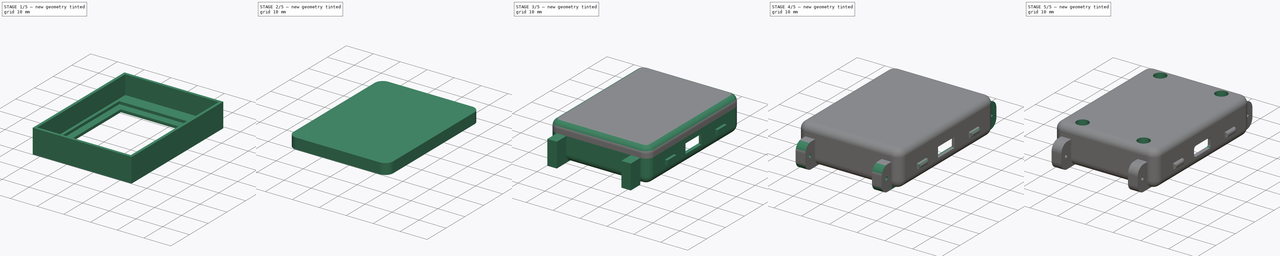
[diagram: build sequence overview — one tinted view per stage of 5, left to right]
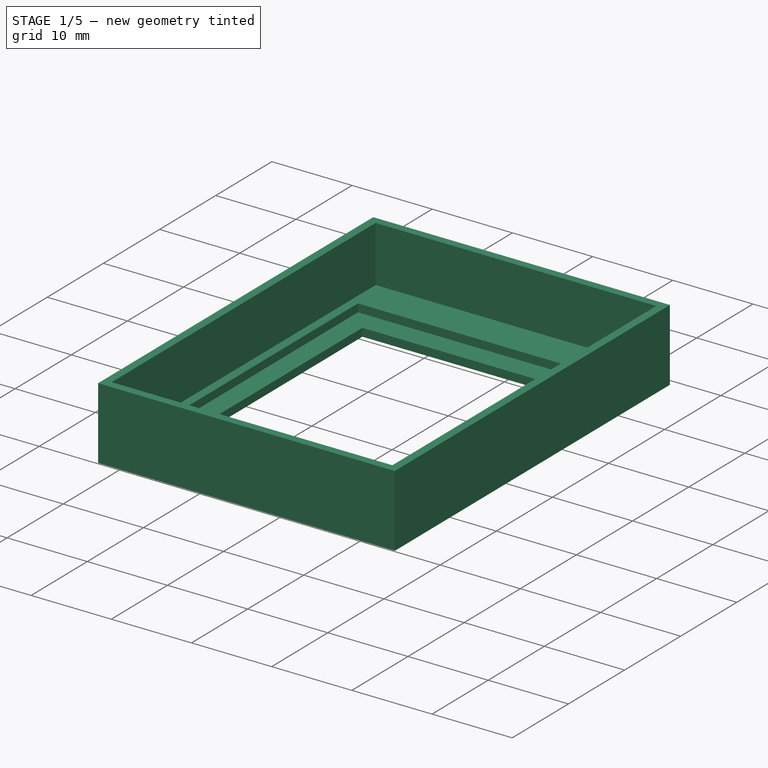
[diagram: stage 1 of 5 — iso view after this stage's code; geometry added in this stage tinted green]
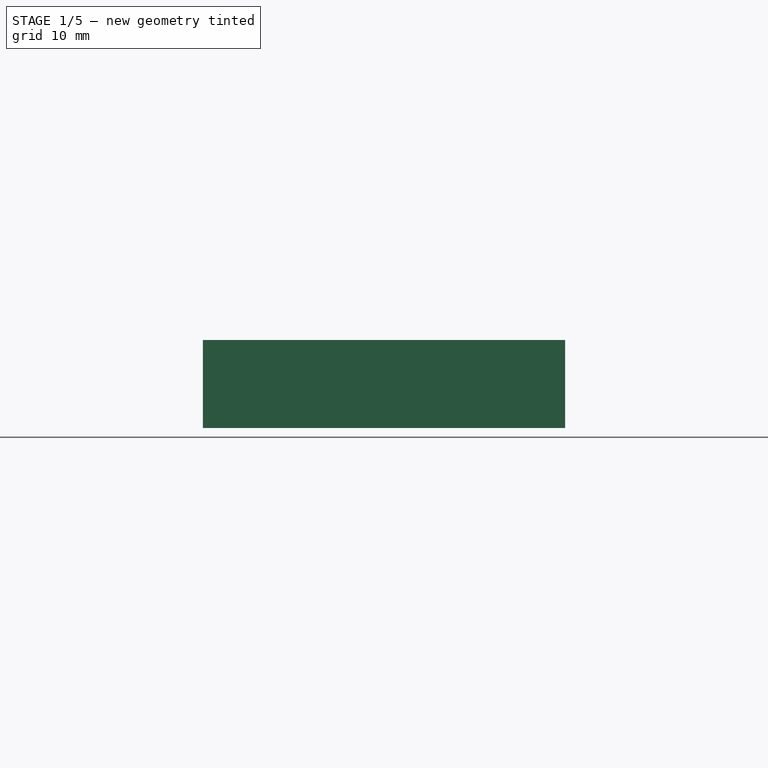
[diagram: stage 1 of 5 — front view after this stage's code; geometry added in this stage tinted green]
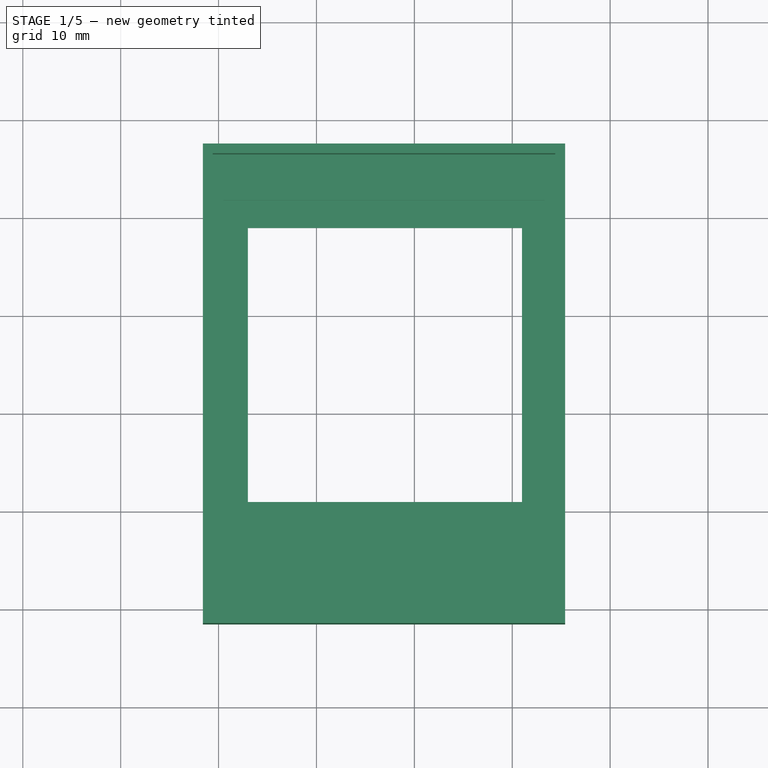
[diagram: stage 1 of 5 — top view after this stage's code; geometry added in this stage tinted green]
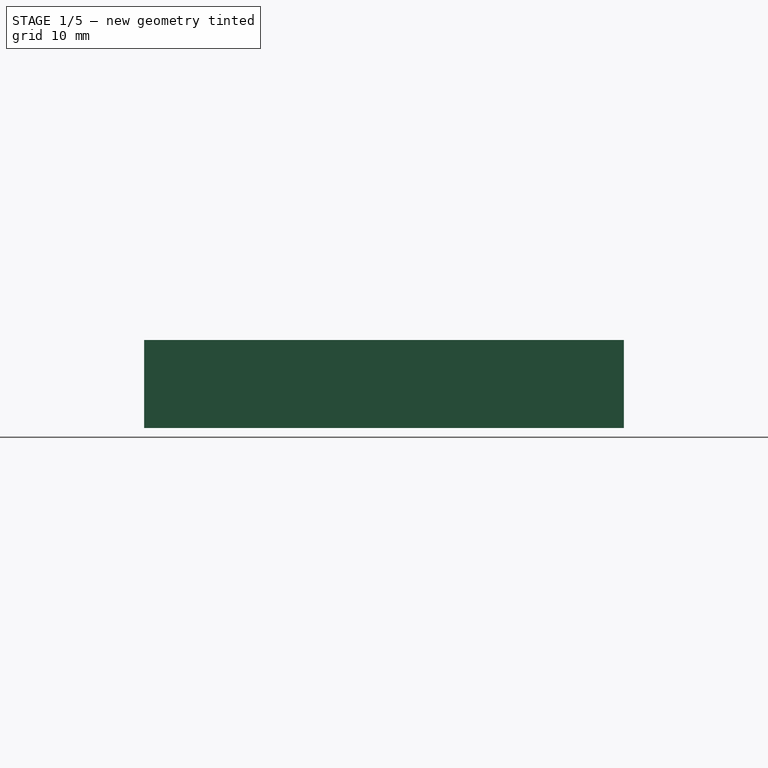
[diagram: stage 1 of 5 — right view after this stage's code; geometry added in this stage tinted green]
FCSTD DOCUMENT  (FreeCAD 0.20R29177 +426 (Git))
Label: JJ-WATCHY
License: All rights reserved
LicenseURL: http://en.wikipedia.org/wiki/All_rights_reserved
objects: Part::Feature×56, App::Part×56, Sketcher::SketchObject×22, PartDesign::Pad×15, PartDesign::Pocket×12, PartDesign::Fillet×10, PartDesign::ShapeBinder×4, PartDesign::Body×3, PartDesign::Plane×2
note: 161 computed .brp shape members not serialized (recipe doc carries the construction recipe); baked Part::Feature solids carry a one-line shape summary decoded from their .brp

FEATURE [Part::Feature] Part__Feature  label="SOLID (15)"
  shape: bbox 7.981 x 5.422 x 2.941 mm, 498 faces (baked)
FEATURE [App::Part] USB_Micro_B_Molex_47346_0001  label="USB_Micro-B_Molex_47346-0001"
  Group = -> [Part__Feature]
  Origin = -> Origin
  Placement = pos=(31.38,22.43,1.65) rot=(0,0,1;1.5708rad)
FEATURE [Part::Feature] Part__Feature001  label="SOLID"
  shape: bbox 1.6 x 0.8 x 0.8 mm, 28 faces (baked)
FEATURE [App::Part] C_0603_1608Metric
  Group = -> [Part__Feature001]
  Origin = -> Origin001
  Placement = pos=(5.16,37.71,1.65) rot=(0,0,1;0rad)
FEATURE [Part::Feature] Part__Feature002  label="SOLID (16)"
  shape: bbox 6.669 x 4.906 x 2.452 mm, 452 faces (baked)
FEATURE [App::Part] Button
  Group = -> [Part__Feature002]
  Origin = -> Origin002
  Placement = pos=(2.38,35.43,1.65) rot=(0,0,-1;1.5708rad)
FEATURE [Part::Feature] Part__Feature003  label="SOLID (16)001"
  shape: bbox 6.669 x 4.906 x 2.452 mm, 452 faces (baked)
FEATURE [App::Part] Button001
  Group = -> [Part__Feature003]
  Origin = -> Origin003
  Placement = pos=(2.38,8.73,1.65) rot=(0,0,-1;1.5708rad)
FEATURE [Part::Feature] Part__Feature004  label="SOLID (16)002"
  shape: bbox 6.669 x 4.906 x 2.452 mm, 452 faces (baked)
FEATURE [App::Part] Button002
  Group = -> [Part__Feature004]
  Origin = -> Origin004
  Placement = pos=(31.42,37.23,1.65) rot=(0,0,1;1.5708rad)
FEATURE [Part::Feature] Part__Feature005  label="SOLID (16)003"
  shape: bbox 6.669 x 4.906 x 2.452 mm, 452 faces (baked)
FEATURE [App::Part] Button003
  Group = -> [Part__Feature005]
  Origin = -> Origin005
  Placement = pos=(31.42,10.53,1.65) rot=(0,0,1;1.5708rad)
FEATURE [Part::Feature] Part__Feature006  label="SOLID (1)"
  shape: bbox 2 x 2 x 1.025 mm, 68 faces (baked)
FEATURE [App::Part] LGA_12_2x2mm_P0_5mm  label="LGA-12_2x2mm_P0.5mm"
  Group = -> [Part__Feature006]
  Origin = -> Origin006
  Placement = pos=(10.76,34.89,1.65) rot=(0,0,1;3.14159rad)
FEATURE [Part::Feature] Part__Feature007  label="COMPOUND (3)"
  shape: bbox 16.3 x 5.85 x 2.11 mm, 1280 faces, 17 solids (baked)
FEATURE [App::Part] FPC_24  label="FPC-24"
  Group = -> [Part__Feature007]
  Origin = -> Origin007
  Placement = pos=(11.025,19.09,1.65) rot=(0,0,1;0rad)
FEATURE [Part::Feature] Part__Feature008  label="SOLID (4)"
  shape: bbox 7.65 x 5.2 x 3.4 mm, 136 faces (baked)
FEATURE [App::Part] Molex_PicoBlade_53261_0271_1x02_1MP_P1_25mm_Horizontal  label="Molex_PicoBlade_53261-0271_1x02-1MP_P1.25mm_Horizontal"
  Group = -> [Part__Feature008]
  Origin = -> Origin008
  Placement = pos=(28.63,31.39,1.65) rot=(0,0,-1;1.5708rad)
FEATURE [Part::Feature] Part__Feature009  label="SOLID (2)"
  shape: bbox 1 x 0.5 x 0.35 mm, 26 faces (baked)
FEATURE [App::Part] R_0402_1005Metric
  Group = -> [Part__Feature009]
  Origin = -> Origin009
  Placement = pos=(31.7,28.28,1.65) rot=(0,0,1;1.5708rad)
FEATURE [Part::Feature] Part__Feature010  label="SOLID (5)"
  shape: bbox 4 x 4 x 1.1 mm, 158 faces (baked)
FEATURE [App::Part] QFN_24_1EP_4x4mm_P0_5mm_EP2_7x2_7mm  label="QFN-24-1EP_4x4mm_P0.5mm_EP2.7x2.7mm"
  Group = -> [Part__Feature010]
  Origin = -> Origin010
  Placement = pos=(25.76,24.38,1.65) rot=(0,0,1;0rad)
FEATURE [Part::Feature] Part__Feature011  label="SOLID (2)001"
  shape: bbox 1 x 0.5 x 0.35 mm, 26 faces (baked)
FEATURE [App::Part] R_0402_1005Metric001
  Group = -> [Part__Feature011]
  Origin = -> Origin011
  Placement = pos=(29.05,13.07,1.65) rot=(0,0,1;0rad)
FEATURE [Part::Feature] Part__Feature012  label="SOLID001"
  shape: bbox 1.6 x 0.8 x 0.8 mm, 28 faces (baked)
FEATURE [App::Part] C_0603_1608Metric001
  Group = -> [Part__Feature012]
  Origin = -> Origin012
  Placement = pos=(21.71,23.42,1.65) rot=(0,0,1;0rad)
FEATURE [Part::Feature] Part__Feature013  label="COMPOUND"
  shape: bbox 37.16 x 32.08 x 2.7 mm, 57 faces, 2 solids (baked)
FEATURE [App::Part] Display
  Group = -> [Part__Feature013]
  Origin = -> Origin013
  Placement = pos=(16.89,23.15,0.55) rot=(0.707107,0.707107,0;3.14159rad)
FEATURE [Part::Feature] Part__Feature014  label="SOLID002"
  shape: bbox 1.6 x 0.8 x 0.8 mm, 28 faces (baked)
FEATURE [App::Part] C_0603_1608Metric002
  Group = -> [Part__Feature014]
  Origin = -> Origin014
  Placement = pos=(15.42,35.06,1.65) rot=(0,0,1;1.5708rad)
FEATURE [Part::Feature] Part__Feature015  label="SOLID003"
  shape: bbox 1.6 x 0.8 x 0.8 mm, 28 faces (baked)
FEATURE [App::Part] C_0603_1608Metric003
  Group = -> [Part__Feature015]
  Origin = -> Origin015
  Placement = pos=(19.01,21.47,1.65) rot=(0,0,1;1.5708rad)
FEATURE [Part::Feature] Part__Feature016  label="SOLID (3)"
  shape: bbox 2 x 1.25 x 1.25 mm, 28 faces (baked)
FEATURE [App::Part] C_0805_2012Metric
  Group = -> [Part__Feature016]
  Origin = -> Origin016
  Placement = pos=(5.63,12.59,1.65) rot=(0,0,1;0rad)
FEATURE [Part::Feature] Part__Feature017  label="SOLID (3)001"
  shape: bbox 2 x 1.25 x 1.25 mm, 28 faces (baked)
FEATURE [App::Part] C_0805_2012Metric001
  Group = -> [Part__Feature017]
  Origin = -> Origin017
  Placement = pos=(6.63,6.34,1.65) rot=(0,0,1;0rad)
FEATURE [Part::Feature] Part__Feature018  label="SOLID004"
  shape: bbox 1.6 x 0.8 x 0.8 mm, 28 faces (baked)
FEATURE [App::Part] C_0603_1608Metric004
  Group = -> [Part__Feature018]
  Origin = -> Origin018
  Placement = pos=(13.81,21.47,1.65) rot=(0,0,1;1.5708rad)
FEATURE [Part::Feature] Part__Feature019  label="SOLID005"
  shape: bbox 1.6 x 0.8 x 0.8 mm, 28 faces (baked)
FEATURE [App::Part] C_0603_1608Metric005
  Group = -> [Part__Feature019]
  Origin = -> Origin019
  Placement = pos=(16.41,21.47,1.65) rot=(0,0,1;1.5708rad)
FEATURE [Part::Feature] Part__Feature020  label="SOLID006"
  shape: bbox 1.6 x 0.8 x 0.8 mm, 28 faces (baked)
FEATURE [App::Part] C_0603_1608Metric006
  Group = -> [Part__Feature020]
  Origin = -> Origin020
  Placement = pos=(17.71,21.47,1.65) rot=(0,0,1;1.5708rad)
FEATURE [Part::Feature] Part__Feature021  label="SOLID007"
  shape: bbox 1.6 x 0.8 x 0.8 mm, 28 faces (baked)
FEATURE [App::Part] C_0603_1608Metric007
  Group = -> [Part__Feature021]
  Origin = -> Origin021
  Placement = pos=(15.11,21.47,1.65) rot=(0,0,1;1.5708rad)
FEATURE [Part::Feature] Part__Feature022  label="SOLID008"
  shape: bbox 1.6 x 0.8 x 0.8 mm, 28 faces (baked)
FEATURE [App::Part] C_0603_1608Metric008
  Group = -> [Part__Feature022]
  Origin = -> Origin022
  Placement = pos=(12.46,21.47,1.65) rot=(0,0,1;1.5708rad)
FEATURE [Part::Feature] Part__Feature023  label="SOLID009"
  shape: bbox 1.6 x 0.8 x 0.8 mm, 28 faces (baked)
FEATURE [App::Part] C_0603_1608Metric009
  Group = -> [Part__Feature023]
  Origin = -> Origin023
  Placement = pos=(11.16,21.47,1.65) rot=(0,0,1;1.5708rad)
FEATURE [Part::Feature] Part__Feature024  label="SOLID (3)002"
  shape: bbox 2 x 1.25 x 1.25 mm, 28 faces (baked)
FEATURE [App::Part] C_0805_2012Metric002
  Group = -> [Part__Feature024]
  Origin = -> Origin024
  Placement = pos=(17.82,35.53,1.65) rot=(0,0,1;3.14159rad)
FEATURE [Part::Feature] Part__Feature025  label="SOLID (6)"
  shape: bbox 3.8 x 1.6 x 1.25 mm, 67 faces (baked)
FEATURE [App::Part] D_SOD_123  label="D_SOD-123"
  Group = -> [Part__Feature025]
  Origin = -> Origin025
  Placement = pos=(1.25,15.82,1.65) rot=(0,0,1;1.5708rad)
FEATURE [Part::Feature] Part__Feature026  label="SOLID (6)001"
  shape: bbox 3.8 x 1.6 x 1.25 mm, 67 faces (baked)
FEATURE [App::Part] D_SOD_123001  label="D_SOD-124"
  Group = -> [Part__Feature026]
  Origin = -> Origin026
  Placement = pos=(3.55,15.82,1.65) rot=(0,0,-1;1.5708rad)
FEATURE [Part::Feature] Part__Feature027  label="SOLID (6)002"
  shape: bbox 3.8 x 1.6 x 1.25 mm, 67 faces (baked)
FEATURE [App::Part] D_SOD_123002  label="D_SOD-125"
  Group = -> [Part__Feature027]
  Origin = -> Origin027
  Placement = pos=(5.85,15.82,1.65) rot=(0,0,-1;1.5708rad)
FEATURE [Part::Feature] Part__Feature028  label="SOLID (6)003"
  shape: bbox 3.8 x 1.6 x 1.25 mm, 67 faces (baked)
FEATURE [App::Part] D_SOD_123003  label="D_SOD-126"
  Group = -> [Part__Feature028]
  Origin = -> Origin028
  Placement = pos=(27.27,19.28,1.65) rot=(0,0,1;1.5708rad)
FEATURE [Part::Feature] Part__Feature029  label="SOLID (7)"
  shape: bbox 1.6 x 0.8 x 1.1 mm, 50 faces (baked)
FEATURE [App::Part] LED_0603_1608Metric
  Group = -> [Part__Feature029]
  Origin = -> Origin029
  Placement = pos=(33.04,30.53,1.65) rot=(0,0,1;1.5708rad)
FEATURE [Part::Feature] Part__Feature030  label="SOLID (8)"
  shape: bbox 3.5 x 1.6 x 1.1 mm, 27 faces (baked)
FEATURE [App::Part] D_SOD_123F  label="D_SOD-123F"
  Group = -> [Part__Feature030]
  Origin = -> Origin030
  Placement = pos=(4.91,34.705,1.65) rot=(0,0,-1;1.5708rad)
FEATURE [Part::Feature] Part__Feature031  label="SOLID (9)"
  shape: bbox 3.2 x 2.5 x 2.5 mm, 28 faces (baked)
FEATURE [App::Part] L_1210_3225Metric
  Group = -> [Part__Feature031]
  Origin = -> Origin031
  Placement = pos=(6.13,9.47,1.65) rot=(0,0,-1;1.5708rad)
FEATURE [Part::Feature] Part__Feature032  label="SOLID (10)"
  shape: bbox 2.5 x 3 x 1.2 mm, 76 faces (baked)
FEATURE [App::Part] SOT_23  label="SOT-23"
  Group = -> [Part__Feature032]
  Origin = -> Origin032
  Placement = pos=(28.1,9.03,1.65) rot=(0,0,-1;1.5708rad)
FEATURE [Part::Feature] Part__Feature033  label="SOLID (10)001"
  shape: bbox 2.5 x 3 x 1.2 mm, 76 faces (baked)
FEATURE [App::Part] SOT_23001  label="SOT-024"
  Group = -> [Part__Feature033]
  Origin = -> Origin033
  Placement = pos=(28.45,15.23,1.65) rot=(0,0,-1;1.5708rad)
FEATURE [Part::Feature] Part__Feature034  label="SOLID (10)002"
  shape: bbox 2.5 x 3 x 1.2 mm, 76 faces (baked)
FEATURE [App::Part] SOT_23002  label="SOT-025"
  Group = -> [Part__Feature034]
  Origin = -> Origin034
  Placement = pos=(7.81,35.31,1.65) rot=(0,0,1;3.14159rad)
FEATURE [Part::Feature] Part__Feature035  label="SOLID (2)002"
  shape: bbox 1 x 0.5 x 0.35 mm, 26 faces (baked)
FEATURE [App::Part] R_0402_1005Metric002
  Group = -> [Part__Feature035]
  Origin = -> Origin035
  Placement = pos=(16.97,34.19,1.65) rot=(0,0,1;3.14159rad)
FEATURE [Part::Feature] Part__Feature036  label="SOLID (2)003"
  shape: bbox 1 x 0.5 x 0.35 mm, 26 faces (baked)
FEATURE [App::Part] R_0402_1005Metric003
  Group = -> [Part__Feature036]
  Origin = -> Origin036
  Placement = pos=(22.55,26.67,1.65) rot=(0,0,1;1.5708rad)
FEATURE [Part::Feature] Part__Feature037  label="SOLID (2)004"
  shape: bbox 1 x 0.5 x 0.35 mm, 26 faces (baked)
FEATURE [App::Part] R_0402_1005Metric004
  Group = -> [Part__Feature037]
  Origin = -> Origin037
  Placement = pos=(23.91,27.48,1.65) rot=(0,0,1;3.14159rad)
FEATURE [Part::Feature] Part__Feature038  label="SOLID (2)005"
  shape: bbox 1 x 0.5 x 0.35 mm, 26 faces (baked)
FEATURE [App::Part] R_0402_1005Metric005
  Group = -> [Part__Feature038]
  Origin = -> Origin038
  Placement = pos=(27.15,13.07,1.65) rot=(0,0,1;3.14159rad)
FEATURE [Part::Feature] Part__Feature039  label="SOLID (2)006"
  shape: bbox 1 x 0.5 x 0.35 mm, 26 faces (baked)
FEATURE [App::Part] R_0402_1005Metric006
  Group = -> [Part__Feature039]
  Origin = -> Origin039
  Placement = pos=(28.66,36.44,1.65) rot=(0,0,1;0rad)
FEATURE [Part::Feature] Part__Feature040  label="SOLID (2)007"
  shape: bbox 1 x 0.5 x 0.35 mm, 26 faces (baked)
FEATURE [App::Part] R_0402_1005Metric007
  Group = -> [Part__Feature040]
  Origin = -> Origin040
  Placement = pos=(6.69,32.68,1.65) rot=(0,0,-1;1.5708rad)
FEATURE [Part::Feature] Part__Feature041  label="SOLID (2)008"
  shape: bbox 1 x 0.5 x 0.35 mm, 26 faces (baked)
FEATURE [App::Part] R_0402_1005Metric008
  Group = -> [Part__Feature041]
  Origin = -> Origin041
  Placement = pos=(29.05,11.28,1.65) rot=(0,0,1;3.14159rad)
FEATURE [Part::Feature] Part__Feature042  label="SOLID (2)009"
  shape: bbox 1 x 0.5 x 0.35 mm, 26 faces (baked)
FEATURE [App::Part] R_0402_1005Metric009
  Group = -> [Part__Feature042]
  Origin = -> Origin042
  Placement = pos=(27.15,11.28,1.65) rot=(0,0,1;3.14159rad)
FEATURE [Part::Feature] Part__Feature043  label="SOLID (2)010"
  shape: bbox 1 x 0.5 x 0.35 mm, 26 faces (baked)
FEATURE [App::Part] R_0402_1005Metric010
  Group = -> [Part__Feature043]
  Origin = -> Origin043
  Placement = pos=(4.35,6.34,1.65) rot=(0,0,1;1.5708rad)
FEATURE [Part::Feature] Part__Feature044  label="SOLID (2)011"
  shape: bbox 1 x 0.5 x 0.35 mm, 26 faces (baked)
FEATURE [App::Part] R_0402_1005Metric011
  Group = -> [Part__Feature044]
  Origin = -> Origin044
  Placement = pos=(30.8,28.28,1.65) rot=(0,0,1;1.5708rad)
FEATURE [Part::Feature] Part__Feature045  label="SOLID (2)012"
  shape: bbox 1 x 0.5 x 0.35 mm, 26 faces (baked)
FEATURE [App::Part] R_0402_1005Metric012
  Group = -> [Part__Feature045]
  Origin = -> Origin045
  Placement = pos=(29.32,17.4,1.65) rot=(0,0,1;3.14159rad)
FEATURE [Part::Feature] Part__Feature046  label="SOLID (2)013"
  shape: bbox 1 x 0.5 x 0.35 mm, 26 faces (baked)
FEATURE [App::Part] R_0402_1005Metric013
  Group = -> [Part__Feature046]
  Origin = -> Origin046
  Placement = pos=(33.24,28.28,1.65) rot=(0,0,-1;1.5708rad)
FEATURE [Part::Feature] Part__Feature047  label="SOLID (2)014"
  shape: bbox 1 x 0.5 x 0.35 mm, 26 faces (baked)
FEATURE [App::Part] R_0402_1005Metric014
  Group = -> [Part__Feature047]
  Origin = -> Origin047
  Placement = pos=(7.75,32.68,1.65) rot=(0,0,-1;1.5708rad)
FEATURE [Part::Feature] Part__Feature048  label="SOLID (13)"
  shape: bbox 7 x 7 x 0.77 mm, 302 faces (baked)
FEATURE [App::Part] QFN_48_1EP_7x7mm_P0_5mm_EP5_15x5_15mm  label="QFN-48-1EP_7x7mm_P0.5mm_EP5.15x5.15mm"
  Group = -> [Part__Feature048]
  Origin = -> Origin048
  Placement = pos=(17.7737,29.6588,1.65) rot=(0,0,-1;1.5708rad)
FEATURE [Part::Feature] Part__Feature049  label="SOLID (11)"
  shape: bbox 2.8 x 2.9 x 1.55 mm, 109 faces (baked)
FEATURE [App::Part] SOT_23_5  label="SOT-23-5"
  Group = -> [Part__Feature049]
  Origin = -> Origin049
  Placement = pos=(24.66,19.88,1.65) rot=(0,0,-1;1.5708rad)
FEATURE [Part::Feature] Part__Feature050  label="SOLID (11)001"
  shape: bbox 2.8 x 2.9 x 1.55 mm, 109 faces (baked)
FEATURE [App::Part] SOT_23_5001  label="SOT-23-006"
  Group = -> [Part__Feature050]
  Origin = -> Origin050
  Placement = pos=(32,15.93,1.65) rot=(0,0,-1;1.5708rad)
FEATURE [Part::Feature] Part__Feature051  label="SOLID (12)"
  shape: bbox 2 x 2 x 1.05 mm, 118 faces (baked)
FEATURE [App::Part] SOT_363_SC_70_6  label="SOT-363_SC-70-6"
  Group = -> [Part__Feature051]
  Origin = -> Origin051
  Placement = pos=(21.31,21.47,1.65) rot=(0,0,1;3.14159rad)
FEATURE [Part::Feature] Part__Feature052  label="SOLID (14)"
  shape: bbox 6 x 4.9 x 1.75 mm, 156 faces (baked)
FEATURE [App::Part] SOIC_8_3_9x4_9mm_P1_27mm  label="SOIC-8_3.9x4.9mm_P1.27mm"
  Group = -> [Part__Feature052]
  Origin = -> Origin052
  Placement = pos=(11.07,29.81,1.65) rot=(0,0,1;1.5708rad)
FEATURE [Part::Feature] Part__Feature053  label="SOLID (2)015"
  shape: bbox 1 x 0.5 x 0.35 mm, 26 faces (baked)
FEATURE [App::Part] R_0402_1005Metric015
  Group = -> [Part__Feature053]
  Origin = -> Origin053
  Placement = pos=(7.75,30.52,1.65) rot=(0,0,-1;1.5708rad)
FEATURE [Part::Feature] Part__Feature054  label="COMPOUND (1)"
  shape: bbox 13 x 10 x 2.5 mm, 15 faces, 3 solids (baked)
FEATURE [App::Part] PagerMotor
  Group = -> [Part__Feature054]
  Origin = -> Origin054
  Placement = pos=(5.45,22.955,5.15) rot=(0.819152,-0.573576,0;3.14159rad)
FEATURE [Part::Feature] Part__Feature055  label="COMPOUND (2)"
  shape: bbox 33.8 x 45.96 x 1 mm, 46 faces (baked)
FEATURE [App::Part] Watchy_Fixed_Dimensions_v1  label="Watchy Fixed Dimensions v1"
  Group = -> [USB_Micro_B_Molex_47346_0001,C_0603_1608Metric,Button,Button001,Button002,Button003,LGA_12_2x2mm_P0_5mm,FPC_24,Molex_PicoBlade_53261_0271_1x02_1MP_P1_25mm_Horizontal,R_0402_1005Metric,QFN_24_1EP_4x4mm_P0_5mm_EP2_7x2_7mm,R_0402_1005Metric001,C_0603_1608Metric001,Display,C_0603_1608Metric002,C_0603_1608Metric003,C_0805_2012Metric,C_0805_2012Metric001,C_0603_1608Metric004,C_0603_1608Metric005,+36 more]
  Origin = -> Origin055
  Placement = pos=(0,0,0.4) rot=(0,0,1;0rad)
FEATURE [Sketcher::SketchObject] Sketch
  FullyConstrained = true
  MapMode = 5
  Placement = pos=(0,0,0) rot=(0,1,0;3.14159rad)
  Support = -> [XY_Plane056]
  sketch-geometry (4):
    g0: LineSegment StartX=-32.81 StartY=41.31 StartZ=0 EndX=-0.98 EndY=41.31 EndZ=0
    g1: LineSegment StartX=-0.98 StartY=41.31 StartZ=0 EndX=-0.98 EndY=10.07 EndZ=0
    g2: LineSegment StartX=-0.98 StartY=10.07 StartZ=0 EndX=-32.81 EndY=10.07 EndZ=0
    g3: LineSegment StartX=-32.81 StartY=10.07 StartZ=0 EndX=-32.81 EndY=41.31 EndZ=0
  constraints (12):
    c: Coincident(g0,g1)
    c: Coincident(g1,g2)
    c: Coincident(g2,g3)
    c: Coincident(g3,g0)
    c: Horizontal(g0)
    c: Horizontal(g2)
    c: Vertical(g1)
    c: Vertical(g3)
    c: DistanceX(g0,g0) = 31.83
    c: DistanceY(g1,g1) = 31.24
    c: DistanceY(g-1,g1) = 10.07
    c: DistanceX(g1,g-1) = 0.98
FEATURE [PartDesign::Pad] Pad
  Direction = (0,0,-1)
  Length = 1.5
  Length2 = 10
  Profile = -> Sketch
  ReferenceAxis = -> Sketch [N_Axis]
  Type = 0
FEATURE [PartDesign::Fillet] Fillet
  Base = -> Pad [Edge1,Edge2,Edge5,Edge8]
  BaseFeature = -> Pad
  Radius = 1
  SupportTransform = false
  UseAllEdges = false
FEATURE [PartDesign::Pocket] Pocket
  BaseFeature = -> Fillet
  Direction = (0,0,-1)
  Length = 0.1
  Length2 = 5
  Profile = -> Fillet [Face2]
  Type = 0
FEATURE [PartDesign::Body] Body  label="Vitre"
  Group = -> [Sketch,Pad,Fillet,Pocket]
  Origin = -> Origin056
  Tip = -> Pocket
FEATURE [PartDesign::ShapeBinder] ReferencePocket
  Placement = pos=(0,0,-1.5) rot=(0,0,1;0rad)
  Support = -> [Pocket]
  TraceSupport = false
FEATURE [PartDesign::Plane] DatumPlane
  Length = 75.1964
  MapMode = 5
  Placement = pos=(0,0,-1.5) rot=(1,0,0;3.14159rad)
  ResizeMode = 0
  Support = -> [ReferencePocket]
  Width = 91.2964
FEATURE [Sketcher::SketchObject] Sketch001
  ExternalGeometry = -> [ReferencePocket]
  FullyConstrained = true
  MapMode = 5
  Placement = pos=(0,0,-1.5) rot=(1,0,0;3.14159rad)
  Support = -> [DatumPlane]
  sketch-geometry (5):
    g0: LineSegment StartX=-1.6 StartY=1.5 StartZ=0 EndX=35.4 EndY=1.5 EndZ=0
    g1: LineSegment StartX=35.4 StartY=1.5 StartZ=0 EndX=35.4 EndY=-47.5 EndZ=0
    g2: LineSegment StartX=35.4 StartY=-47.5 StartZ=0 EndX=-1.6 EndY=-47.5 EndZ=0
    g3: LineSegment StartX=-1.6 StartY=-47.5 StartZ=0 EndX=-1.6 EndY=1.5 EndZ=0
    g4: GeomPoint X=16.9 Y=-23 Z=0
  constraints (13):
    c: Coincident(g0,g1)
    c: Coincident(g1,g2)
    c: Coincident(g2,g3)
    c: Coincident(g3,g0)
    c: Horizontal(g0)
    c: Horizontal(g2)
    c: Vertical(g1)
    c: Vertical(g3)
    c: DistanceX(g0,g0) = 37
    c: DistanceY(g1,g1) = 49
    c: DistanceX(g-1,g4) = 16.9
    c: DistanceY(g4,g-1) = 23
    c: Symmetric(g2,g0,g4)
FEATURE [PartDesign::Pad] Pad001
  Direction = (0,0,-1)
  Length = 1
  Length2 = 8
  Placement = pos=(0,0,-1.5) rot=(1,0,0;3.14159rad)
  Profile = -> Sketch001
  ReferenceAxis = -> Sketch001 [N_Axis]
  Type = 4
FEATURE [Sketcher::SketchObject] Sketch002
  FullyConstrained = true
  MapMode = 5
  Placement = pos=(0,1e-16,-2.5) rot=(1,0,0;3.14159rad)
  Support = -> [Pad001]
  sketch-geometry (5):
    g0: LineSegment StartX=3 StartY=-11 StartZ=0 EndX=31 EndY=-11 EndZ=0
    g1: LineSegment StartX=31 StartY=-11 StartZ=0 EndX=31 EndY=-39 EndZ=0
    g2: LineSegment StartX=31 StartY=-39 StartZ=0 EndX=3 EndY=-39 EndZ=0
    g3: LineSegment StartX=3 StartY=-39 StartZ=0 EndX=3 EndY=-11 EndZ=0
    g4: GeomPoint X=17 Y=-25 Z=0
  constraints (13):
    c: Coincident(g0,g1)
    c: Coincident(g1,g2)
    c: Coincident(g2,g3)
    c: Coincident(g3,g0)
    c: Horizontal(g0)
    c: Horizontal(g2)
    c: Vertical(g1)
    c: Vertical(g3)
    c: DistanceX(g0,g0) = 28
    c: DistanceY(g1,g1) = 28
    c: DistanceX(g-1,g4) = 17
    c: DistanceY(g4,g-1) = 25
    c: Symmetric(g2,g0,g4)
FEATURE [PartDesign::Pocket] Pocket001
  BaseFeature = -> Pad001
  Direction = (0,-1e-16,1)
  Length = 1
  Length2 = 5
  Placement = pos=(0,0,-1.5) rot=(1,0,0;3.14159rad)
  Profile = -> Sketch002
  ReferenceAxis = -> Sketch002 [N_Axis]
  Type = 0
FEATURE [Sketcher::SketchObject] Sketch003
  ExternalGeometry = -> [Pocket001]
  FullyConstrained = true
  MapMode = 5
  Placement = pos=(0,-2e-15,6.5) rot=(0,0,1;0rad)
  Support = -> [Pocket001]
  sketch-geometry (5):
    g0: LineSegment StartX=-0.6 StartY=46.5 StartZ=0 EndX=-0.6 EndY=-0.5 EndZ=0
    g1: LineSegment StartX=-0.6 StartY=-0.5 StartZ=0 EndX=34.4 EndY=-0.5 EndZ=0
    g2: LineSegment StartX=34.4 StartY=-0.5 StartZ=0 EndX=34.4 EndY=46.5 EndZ=0
    g3: LineSegment StartX=34.4 StartY=46.5 StartZ=0 EndX=-0.6 EndY=46.5 EndZ=0
    g4: Circle CenterX=16.9 CenterY=23 CenterZ=0 NormalX=0 NormalY=0 NormalZ=1 AngleXU=0 Radius=29.3002
  constraints (14):
    c: Coincident(g0,g1)
    c: Coincident(g1,g2)
    c: Coincident(g2,g3)
    c: Coincident(g3,g0)
    c: PointOnObject(g0,g4)
    c: PointOnObject(g1,g4)
    c: PointOnObject(g2,g4)
    c: PointOnObject(g3,g4)
    c: Horizontal(g3)
    c: Horizontal(g1)
    c: Vertical(g2)
    c: DistanceX(g3,g3) = 35
    c: DistanceY(g2,g2) = 47
    c: Symmetric(g-3,g-4,g4)
FEATURE [PartDesign::Pocket] Pocket002
  BaseFeature = -> Pocket001
  Direction = (0,2e-16,-1)
  Length = 7
  Length2 = 5
  Placement = pos=(0,0,-1.5) rot=(1,0,0;3.14159rad)
  Profile = -> Sketch003
  ReferenceAxis = -> Sketch003 [N_Axis]
  Type = 0
FEATURE [Sketcher::SketchObject] Sketch004
  ExternalGeometry = -> [ReferencePocket]
  FullyConstrained = true
  MapMode = 5
  Placement = pos=(0,-4e-16,-0.5) rot=(0,0,1;0rad)
  Support = -> [Pocket002]
  sketch-geometry (4):
    g0: LineSegment StartX=0.48 StartY=41.81 StartZ=0 EndX=33.31 EndY=41.81 EndZ=0
    g1: LineSegment StartX=33.31 StartY=41.81 StartZ=0 EndX=33.31 EndY=9.57 EndZ=0
    g2: LineSegment StartX=33.31 StartY=9.57 StartZ=0 EndX=0.48 EndY=9.57 EndZ=0
    g3: LineSegment StartX=0.48 StartY=9.57 StartZ=0 EndX=0.48 EndY=41.81 EndZ=0
  constraints (12):
    c: Coincident(g0,g1)
    c: Coincident(g1,g2)
    c: Coincident(g2,g3)
    c: Coincident(g3,g0)
    c: Horizontal(g0)
    c: Horizontal(g2)
    c: Vertical(g1)
    c: Vertical(g3)
    c: DistanceX(g0,g-4) = 0.5
    c: DistanceX(g-6,g0) = 0.5
    c: DistanceY(g-3,g0) = 0.5
    c: DistanceY(g1,g-5) = 0.5
FEATURE [PartDesign::Pocket] Pocket003
  BaseFeature = -> Pocket002
  Direction = (0,4e-16,-1)
  Length = 1
  Length2 = 5
  Placement = pos=(0,0,-1.5) rot=(1,0,0;3.14159rad)
  Profile = -> Sketch004
  ReferenceAxis = -> Sketch004 [N_Axis]
  Type = 0
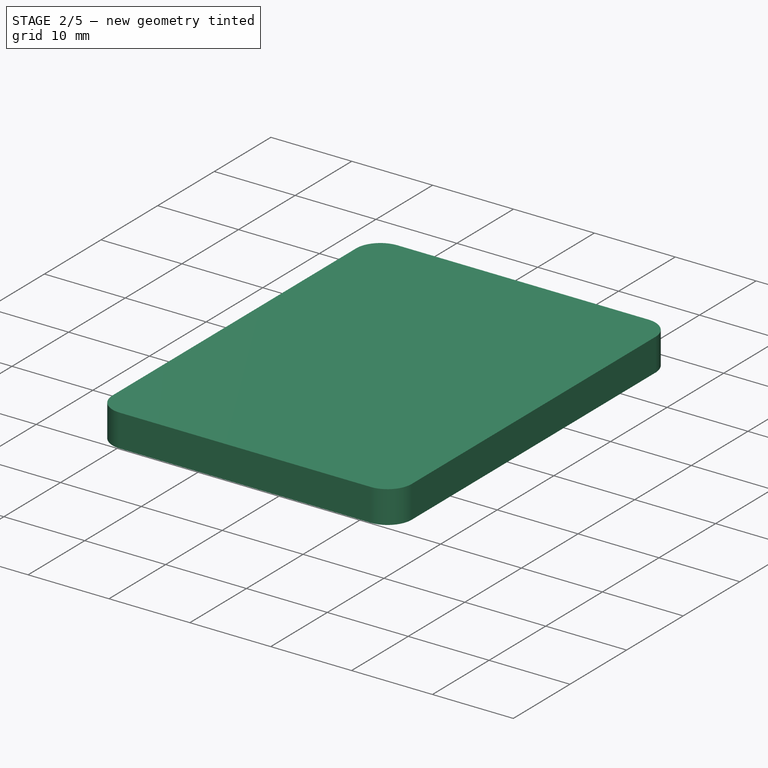
[diagram: stage 2 of 5 — iso view after this stage's code; geometry added in this stage tinted green]
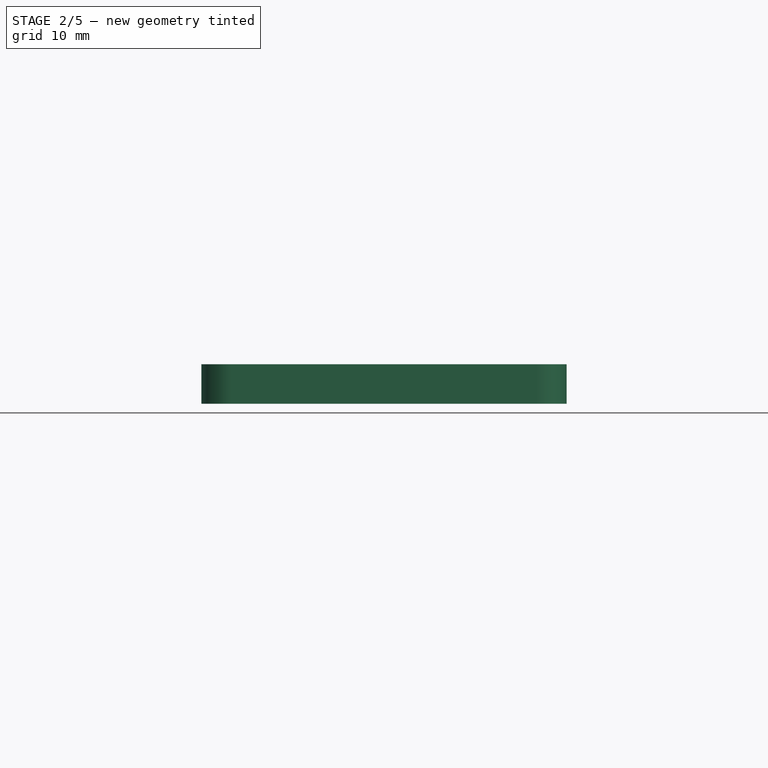
[diagram: stage 2 of 5 — front view after this stage's code; geometry added in this stage tinted green]
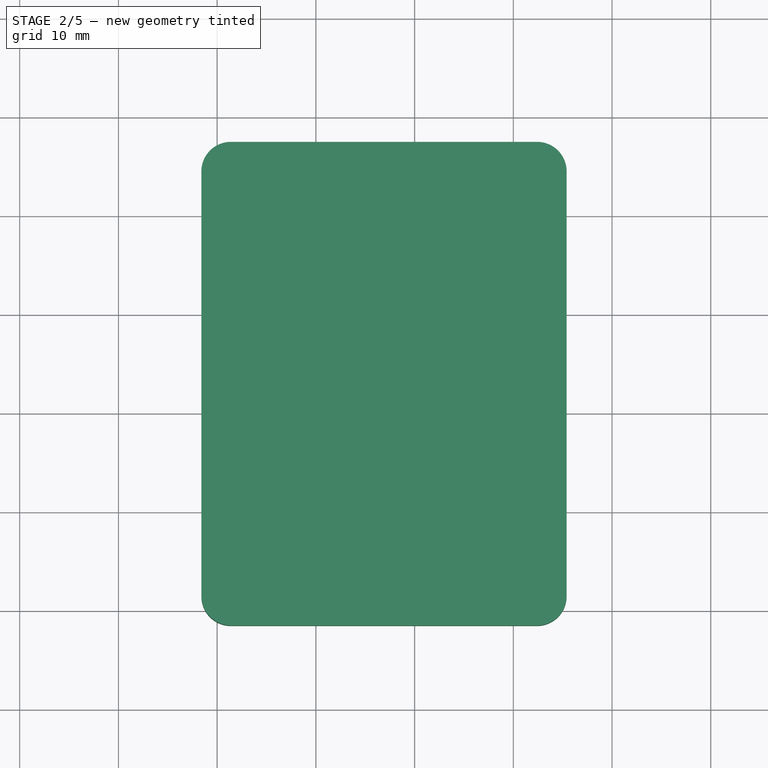
[diagram: stage 2 of 5 — top view after this stage's code; geometry added in this stage tinted green]
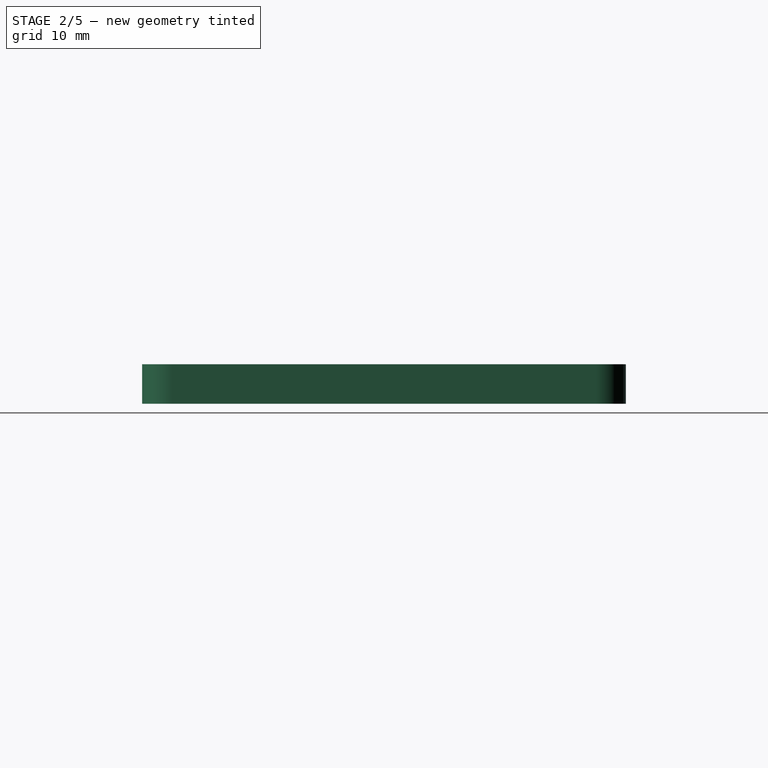
[diagram: stage 2 of 5 — right view after this stage's code; geometry added in this stage tinted green]
FEATURE [Sketcher::SketchObject] Sketch005
  FullyConstrained = true
  MapMode = 5
  Placement = pos=(34.4,0,-1.5) rot=(0.57735,0.57735,-0.57735;4.18879rad)
  Support = -> [Pocket003]
  sketch-geometry (4):
    g0: LineSegment StartX=18.2 StartY=-2.55 StartZ=0 EndX=26.7 EndY=-2.55 EndZ=0
    g1: LineSegment StartX=26.7 StartY=-2.55 StartZ=0 EndX=26.7 EndY=-6.15 EndZ=0
    g2: LineSegment StartX=26.7 StartY=-6.15 StartZ=0 EndX=18.2 EndY=-6.15 EndZ=0
    g3: LineSegment StartX=18.2 StartY=-6.15 StartZ=0 EndX=18.2 EndY=-2.55 EndZ=0
  constraints (12):
    c: Coincident(g0,g1)
    c: Coincident(g1,g2)
    c: Coincident(g2,g3)
    c: Coincident(g3,g0)
    c: Horizontal(g0)
    c: Horizontal(g2)
    c: Vertical(g1)
    c: Vertical(g3)
    c: DistanceX(g2,g2) = 8.5
    c: DistanceY(g1,g1) = 3.6
    c: DistanceX(g-1,g0) = 18.2
    c: DistanceY(g0,g-1) = 2.55
FEATURE [PartDesign::Pocket] Pocket004
  BaseFeature = -> Pocket003
  Direction = (1,0,0)
  Length = 5
  Length2 = 5
  Placement = pos=(0,0,-1.5) rot=(1,0,0;3.14159rad)
  Profile = -> Sketch005
  ReferenceAxis = -> Sketch005 [N_Axis]
  Type = 0
FEATURE [Sketcher::SketchObject] Sketch006
  ExternalGeometry = -> [Pocket004]
  FullyConstrained = true
  MapMode = 5
  Placement = pos=(0,-4.9e-15,6.5) rot=(0,0,1;0rad)
  Support = -> [Pocket004]
  sketch-geometry (20):
    g0: LineSegment StartX=-1.1 StartY=37.83 StartZ=0 EndX=-0.6 EndY=37.83 EndZ=0
    g1: LineSegment StartX=-0.6 StartY=37.83 StartZ=0 EndX=-0.6 EndY=34.83 EndZ=0
    g2: LineSegment StartX=-0.6 StartY=34.83 StartZ=0 EndX=-1.1 EndY=34.83 EndZ=0
    g3: LineSegment StartX=-1.1 StartY=34.83 StartZ=0 EndX=-1.1 EndY=37.83 EndZ=0
    g4: LineSegment StartX=34.4 StartY=37.83 StartZ=0 EndX=34.9 EndY=37.83 EndZ=0
    g5: LineSegment StartX=34.9 StartY=37.83 StartZ=0 EndX=34.9 EndY=34.83 EndZ=0
    g6: LineSegment StartX=34.9 StartY=34.83 StartZ=0 EndX=34.4 EndY=34.83 EndZ=0
    g7: LineSegment StartX=34.4 StartY=34.83 StartZ=0 EndX=34.4 EndY=37.83 EndZ=0
    g8: LineSegment StartX=34.4 StartY=8.13 StartZ=0 EndX=34.9 EndY=8.13 EndZ=0
    g9: LineSegment StartX=34.9 StartY=8.13 StartZ=0 EndX=34.9 EndY=11.13 EndZ=0
    g10: LineSegment StartX=34.9 StartY=11.13 StartZ=0 EndX=34.4 EndY=11.13 EndZ=0
    g11: LineSegment StartX=34.4 StartY=11.13 StartZ=0 EndX=34.4 EndY=8.13 EndZ=0
    g12: LineSegment StartX=-1.1 StartY=11.13 StartZ=0 EndX=-0.6 EndY=11.13 EndZ=0
    g13: LineSegment StartX=-0.6 StartY=11.13 StartZ=0 EndX=-0.6 EndY=8.13 EndZ=0
    g14: LineSegment StartX=-0.6 StartY=8.13 StartZ=0 EndX=-1.1 EndY=8.13 EndZ=0
    g15: LineSegment StartX=-1.1 StartY=8.13 StartZ=0 EndX=-1.1 EndY=11.13 EndZ=0
    g16: Circle CenterX=-0.85 CenterY=9.63 CenterZ=0 NormalX=0 NormalY=0 NormalZ=1 AngleXU=0 Radius=1.52069
    g17: Circle CenterX=34.65 CenterY=9.63 CenterZ=0 NormalX=0 NormalY=0 NormalZ=1 AngleXU=0 Radius=1.52069
    g18: Circle CenterX=34.65 CenterY=36.33 CenterZ=0 NormalX=0 NormalY=0 NormalZ=1 AngleXU=0 Radius=1.52069
    g19: Circle CenterX=-0.85 CenterY=36.33 CenterZ=0 NormalX=0 NormalY=0 NormalZ=1 AngleXU=0 Radius=1.52069
  constraints (60):
    c: Coincident(g0,g1)
    c: Coincident(g1,g2)
    c: Coincident(g2,g3)
    c: Coincident(g3,g0)
    c: Horizontal(g0)
    c: Horizontal(g2)
    c: Vertical(g1)
    c: Vertical(g3)
    c: PointOnObject(g0,g-3)
    c: DistanceX(g0,g0) = 0.5
    c: DistanceY(g3,g3) = 3
    c: Coincident(g4,g5)
    c: Coincident(g5,g6)
    c: Coincident(g6,g7)
    c: Coincident(g7,g4)
    c: Horizontal(g4)
    c: Horizontal(g6)
    c: Vertical(g5)
    c: Vertical(g7)
    c: Coincident(g8,g9)
    c: Coincident(g9,g10)
    c: Coincident(g10,g11)
    c: Coincident(g11,g8)
    c: Horizontal(g8)
    c: Horizontal(g10)
    c: Vertical(g9)
    c: Vertical(g11)
    c: Coincident(g12,g13)
    c: Coincident(g13,g14)
    c: Coincident(g14,g15)
    c: Coincident(g15,g12)
    c: Horizontal(g12)
    c: Horizontal(g14)
    c: Vertical(g13)
    c: Vertical(g15)
    c: Equal(g0,g12)
    c: Equal(g12,g4)
    c: Equal(g4,g8)
    c: Equal(g3,g13)
    c: Equal(g13,g5)
    c: Equal(g5,g9)
    c: PointOnObject(g12,g-3)
    c: PointOnObject(g4,g-4)
    c: PointOnObject(g8,g-4)
    c: PointOnObject(g12,g16)
    c: PointOnObject(g12,g16)
    c: PointOnObject(g14,g16)
    c: DistanceY(g-1,g16) = 9.63
    c: PointOnObject(g9,g17)
    c: PointOnObject(g10,g17)
    c: PointOnObject(g8,g17)
    c: PointOnObject(g4,g18)
    c: PointOnObject(g4,g18)
    c: PointOnObject(g5,g18)
    c: PointOnObject(g0,g19)
    c: PointOnObject(g0,g19)
    c: PointOnObject(g2,g19)
    c: DistanceY(g-1,g19) = 36.33
    c: DistanceY(g-1,g18) = 36.33
    c: DistanceY(g-1,g17) = 9.63
FEATURE [PartDesign::Pocket] Pocket005
  BaseFeature = -> Pocket004
  Direction = (0,6e-16,-1)
  Length = 5
  Length2 = 5
  Placement = pos=(0,0,-1.5) rot=(1,0,0;3.14159rad)
  Profile = -> Sketch006
  ReferenceAxis = -> Sketch006 [N_Axis]
  Type = 0
FEATURE [Sketcher::SketchObject] Sketch007
  FullyConstrained = true
  MapMode = 5
  Placement = pos=(-1.6,0,-1.5) rot=(0.57735,0.57735,-0.57735;4.18879rad)
  Support = -> [Pocket005]
  sketch-geometry (8):
    g0: LineSegment StartX=7.23 StartY=-3.1 StartZ=0 EndX=12.03 EndY=-3.1 EndZ=0
    g1: LineSegment StartX=12.03 StartY=-3.1 StartZ=0 EndX=12.03 EndY=-4.9 EndZ=0
    g2: LineSegment StartX=12.03 StartY=-4.9 StartZ=0 EndX=7.23 EndY=-4.9 EndZ=0
    g3: LineSegment StartX=7.23 StartY=-4.9 StartZ=0 EndX=7.23 EndY=-3.1 EndZ=0
    g4: LineSegment StartX=33.9 StartY=-3.1 StartZ=0 EndX=38.7 EndY=-3.1 EndZ=0
    g5: LineSegment StartX=38.7 StartY=-3.1 StartZ=0 EndX=38.7 EndY=-4.9 EndZ=0
    g6: LineSegment StartX=38.7 StartY=-4.9 StartZ=0 EndX=33.9 EndY=-4.9 EndZ=0
    g7: LineSegment StartX=33.9 StartY=-4.9 StartZ=0 EndX=33.9 EndY=-3.1 EndZ=0
  constraints (24):
    c: Coincident(g0,g1)
    c: Coincident(g1,g2)
    c: Coincident(g2,g3)
    c: Coincident(g3,g0)
    c: Horizontal(g0)
    c: Horizontal(g2)
    c: Vertical(g1)
    c: Vertical(g3)
    c: Coincident(g4,g5)
    c: Coincident(g5,g6)
    c: Coincident(g6,g7)
    c: Coincident(g7,g4)
    c: Horizontal(g4)
    c: Horizontal(g6)
    c: Vertical(g5)
    c: Vertical(g7)
    c: DistanceX(g2,g2) = 4.8
    c: DistanceY(g1,g1) = 1.8
    c: Equal(g1,g7)
    c: Equal(g2,g6)
    c: DistanceY(g0,g-1) = 3.1
    c: DistanceY(g4,g-1) = 3.1
    c: DistanceX(g-1,g0) = 7.23
    c: DistanceX(g-1,g4) = 33.9
FEATURE [PartDesign::Pad] Pad002
  BaseFeature = -> Pocket005
  Direction = (-1,0,0)
  Length = 1
  Length2 = 10
  Placement = pos=(0,0,-1.5) rot=(1,0,0;3.14159rad)
  Profile = -> Sketch007
  ReferenceAxis = -> Sketch007 [N_Axis]
  Type = 0
FEATURE [Sketcher::SketchObject] Sketch008
  ExternalGeometry = -> [Pad002]
  FullyConstrained = true
  MapMode = 5
  Placement = pos=(35.4,0,-1.5) rot=(0.57735,-0.57735,0.57735;4.18879rad)
  Support = -> [Pad002]
  sketch-geometry (8):
    g0: LineSegment StartX=-38.7 StartY=-3.1 StartZ=0 EndX=-33.9 EndY=-3.1 EndZ=0
    g1: LineSegment StartX=-33.9 StartY=-3.1 StartZ=0 EndX=-33.9 EndY=-4.9 EndZ=0
    g2: LineSegment StartX=-33.9 StartY=-4.9 StartZ=0 EndX=-38.7 EndY=-4.9 EndZ=0
    g3: LineSegment StartX=-38.7 StartY=-4.9 StartZ=0 EndX=-38.7 EndY=-3.1 EndZ=0
    g4: LineSegment StartX=-12.03 StartY=-3.1 StartZ=0 EndX=-7.23 EndY=-3.1 EndZ=0
    g5: LineSegment StartX=-7.23 StartY=-3.1 StartZ=0 EndX=-7.23 EndY=-4.9 EndZ=0
    g6: LineSegment StartX=-7.23 StartY=-4.9 StartZ=0 EndX=-12.03 EndY=-4.9 EndZ=0
    g7: LineSegment StartX=-12.03 StartY=-4.9 StartZ=0 EndX=-12.03 EndY=-3.1 EndZ=0
  constraints (20):
    c: Coincident(g0,g1)
    c: Coincident(g1,g2)
    c: Coincident(g2,g3)
    c: Coincident(g3,g0)
    c: Horizontal(g0)
    c: Horizontal(g2)
    c: Vertical(g1)
    c: Vertical(g3)
    c: Coincident(g0,g-4)
    c: Coincident(g1,g-6)
    c: Coincident(g4,g5)
    c: Coincident(g5,g6)
    c: Coincident(g6,g7)
    c: Coincident(g7,g4)
    c: Horizontal(g4)
    c: Horizontal(g6)
    c: Vertical(g5)
    c: Vertical(g7)
    c: Coincident(g4,g-8)
    c: Coincident(g5,g-7)
FEATURE [PartDesign::Pad] Pad003
  BaseFeature = -> Pad002
  Direction = (1,0,0)
  Length = 1
  Length2 = 10
  Placement = pos=(0,0,-1.5) rot=(1,0,0;3.14159rad)
  Profile = -> Sketch008
  ReferenceAxis = -> Sketch008 [N_Axis]
  Type = 0
FEATURE [PartDesign::Fillet] Fillet001
  Base = -> Pad003 [Edge5,Edge105,Edge18,Edge124,Edge1,Edge2,Edge116,Edge103]
  BaseFeature = -> Pad003
  Placement = pos=(0,0,-1.5) rot=(1,0,0;3.14159rad)
  Radius = 3
  SupportTransform = false
  UseAllEdges = false
FEATURE [PartDesign::Fillet] Fillet002
  Base = -> Fillet001 [Edge41]
  BaseFeature = -> Fillet001
  Placement = pos=(0,0,-1.5) rot=(1,0,0;3.14159rad)
  Radius = 3
  SupportTransform = false
  UseAllEdges = false
FEATURE [PartDesign::Fillet] Fillet003
  Base = -> Fillet002 [Edge60,Edge59,Edge58,Edge61]
  BaseFeature = -> Fillet002
  Placement = pos=(0,0,-1.5) rot=(1,0,0;3.14159rad)
  Radius = 0.5
  SupportTransform = false
  UseAllEdges = false
FEATURE [PartDesign::ShapeBinder] ReferenceFillet003
  Placement = pos=(0,0,-1.5) rot=(1,0,0;3.14159rad)
  Support = -> [Fillet003]
  TraceSupport = false
FEATURE [PartDesign::Plane] DatumPlane001
  Length = 73.6348
  MapMode = 5
  Placement = pos=(0,-7.8e-15,6.5) rot=(0,0,1;0rad)
  ResizeMode = 0
  Support = -> [ReferenceFillet003]
  Width = 85.7348
FEATURE [Sketcher::SketchObject] Sketch009
  ExternalGeometry = -> [ReferenceFillet003]
  FullyConstrained = true
  MapMode = 5
  Placement = pos=(0,-7.8e-15,6.5) rot=(0,0,1;0rad)
  Support = -> [DatumPlane001]
  sketch-geometry (8):
    g0: LineSegment StartX=1.4 StartY=47.5 StartZ=0 EndX=32.4 EndY=47.5 EndZ=0
    g1: LineSegment StartX=-1.6 StartY=44.5 StartZ=0 EndX=-1.6 EndY=1.5 EndZ=0
    g2: LineSegment StartX=35.4 StartY=44.5 StartZ=0 EndX=35.4 EndY=1.5 EndZ=0
    g3: LineSegment StartX=1.4 StartY=-1.5 StartZ=0 EndX=32.4 EndY=-1.5 EndZ=0
    g4: ArcOfCircle CenterX=1.4 CenterY=1.5 CenterZ=0 NormalX=0 NormalY=0 NormalZ=1 AngleXU=0 Radius=3 StartAngle=3.14159 EndAngle=4.71239
    g5: ArcOfCircle CenterX=32.4 CenterY=1.5 CenterZ=0 NormalX=0 NormalY=0 NormalZ=1 AngleXU=0 Radius=3 StartAngle=4.71239 EndAngle=6.28319
    g6: ArcOfCircle CenterX=1.4 CenterY=44.5 CenterZ=0 NormalX=0 NormalY=0 NormalZ=1 AngleXU=0 Radius=3 StartAngle=1.5708 EndAngle=3.14159
    g7: ArcOfCircle CenterX=32.4 CenterY=44.5 CenterZ=0 NormalX=0 NormalY=0 NormalZ=1 AngleXU=0 Radius=3 StartAngle=3e-16 EndAngle=1.5708
  constraints (20):
    c: Coincident(g0,g-4)
    c: Coincident(g0,g-6)
    c: Coincident(g1,g-5)
    c: Coincident(g1,g-7)
    c: Coincident(g2,g-10)
    c: Coincident(g2,g-10)
    c: Coincident(g3,g-8)
    c: Coincident(g3,g-9)
    c: Coincident(g4,g-7)
    c: Coincident(g4,g1)
    c: Coincident(g4,g3)
    c: Coincident(g5,g-9)
    c: Coincident(g5,g2)
    c: Coincident(g5,g3)
    c: Coincident(g6,g-4)
    c: Coincident(g6,g1)
    c: Coincident(g6,g0)
    c: Coincident(g7,g-6)
    c: Coincident(g7,g0)
    c: Coincident(g7,g2)
FEATURE [PartDesign::Pad] Pad004
  Direction = (0,-1e-15,1)
  Length = 4
  Length2 = 10
  Placement = pos=(0,-7.8e-15,6.5) rot=(0,0,1;0rad)
  Profile = -> Sketch009
  ReferenceAxis = -> Sketch009 [N_Axis]
  Type = 0
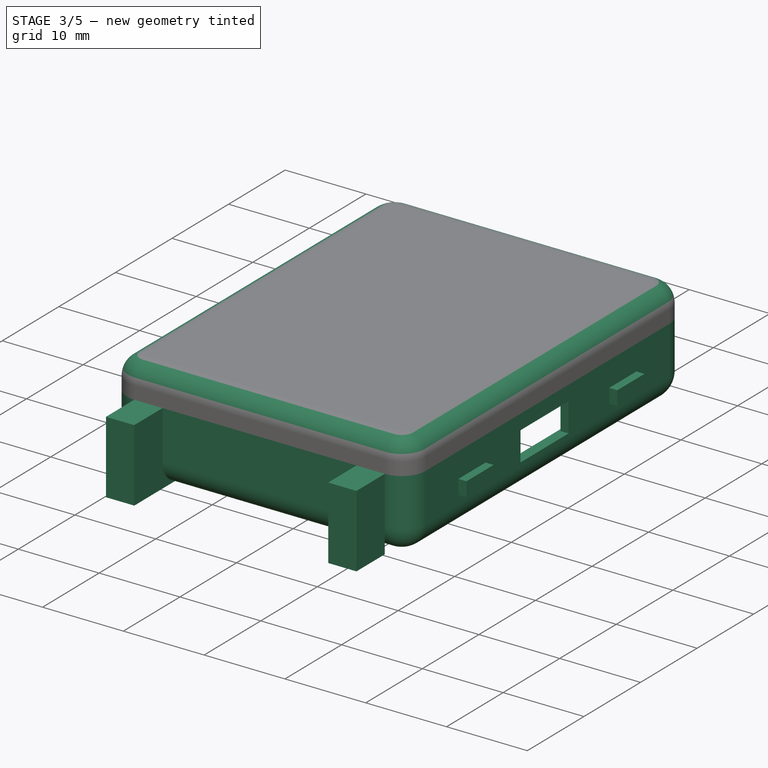
[diagram: stage 3 of 5 — iso view after this stage's code; geometry added in this stage tinted green]
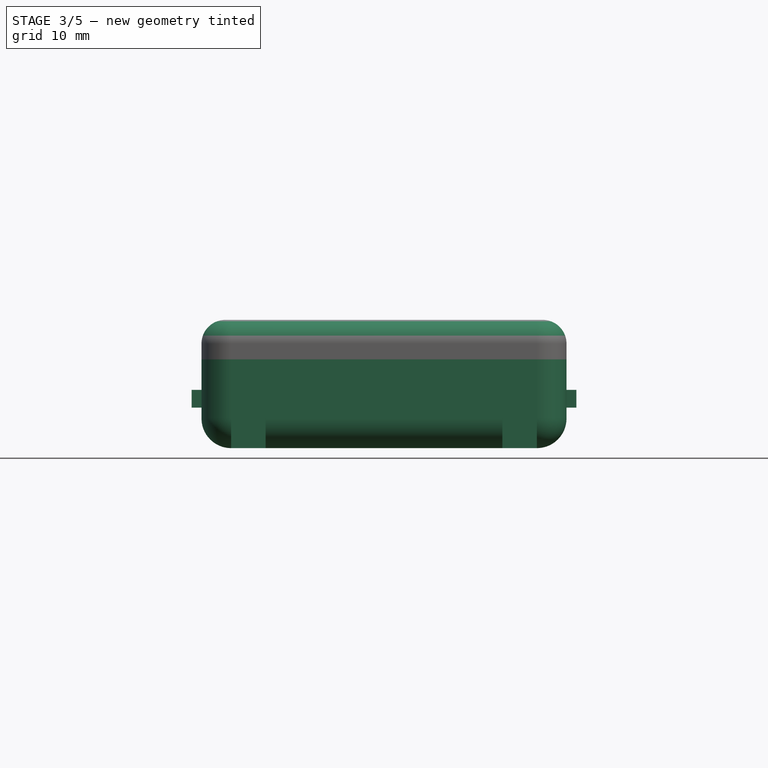
[diagram: stage 3 of 5 — front view after this stage's code; geometry added in this stage tinted green]
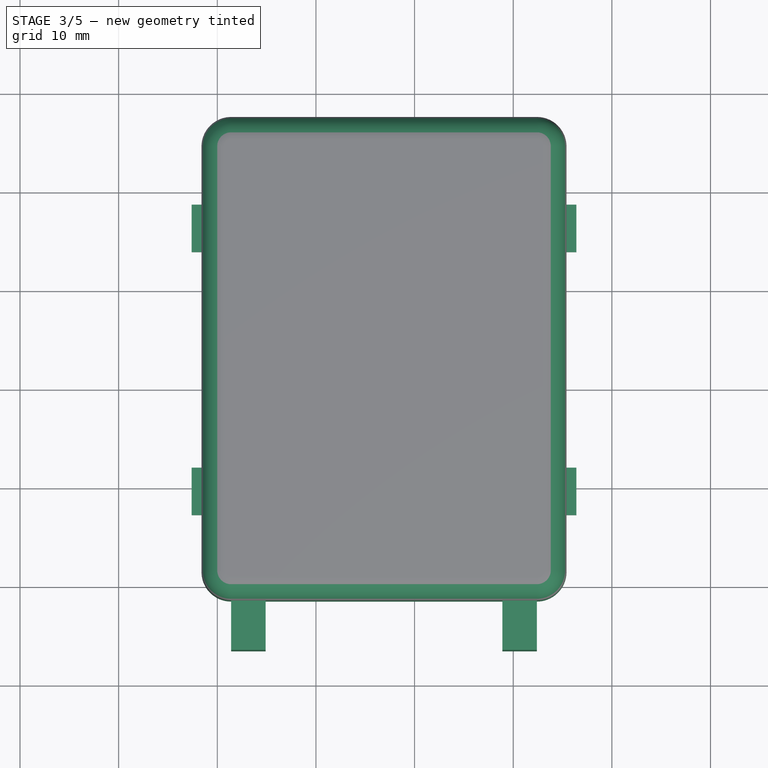
[diagram: stage 3 of 5 — top view after this stage's code; geometry added in this stage tinted green]
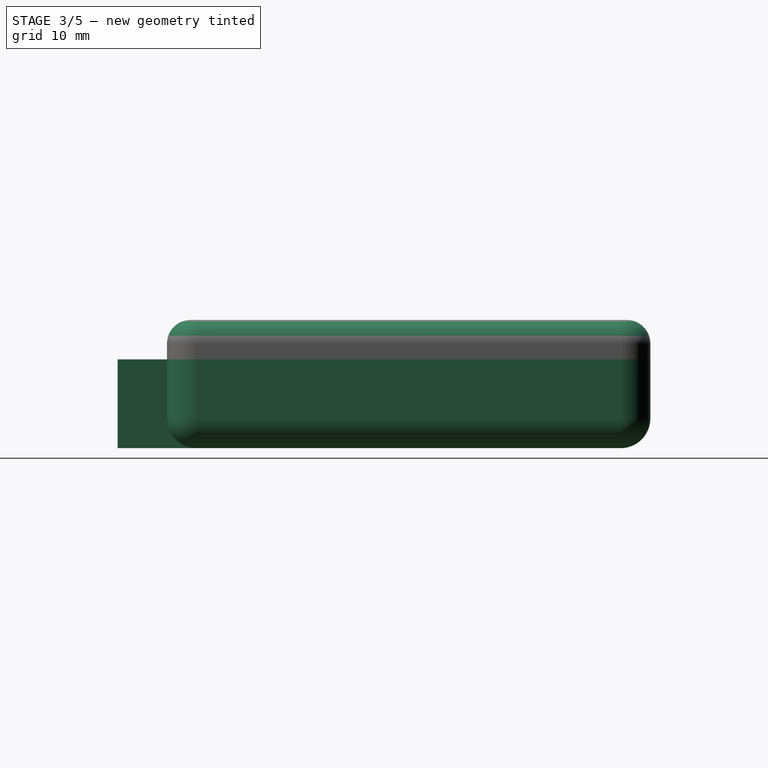
[diagram: stage 3 of 5 — right view after this stage's code; geometry added in this stage tinted green]
FEATURE [PartDesign::Fillet] Fillet004
  Base = -> Pad004 [Edge7]
  BaseFeature = -> Pad004
  Placement = pos=(0,-7.8e-15,6.5) rot=(0,0,1;0rad)
  Radius = 2.4
  SupportTransform = false
  UseAllEdges = false
FEATURE [Sketcher::SketchObject] Sketch010
  ExternalGeometry = -> [ReferenceFillet003]
  FullyConstrained = true
  MapMode = 5
  Placement = pos=(0,-7.8e-15,6.5) rot=(1,0,0;3.14159rad)
  Support = -> [Fillet004]
  sketch-geometry (8):
    g0: ArcOfCircle CenterX=2.4 CenterY=-2.5 CenterZ=0 NormalX=0 NormalY=0 NormalZ=1 AngleXU=0 Radius=2 StartAngle=1.5708 EndAngle=3.14159
    g1: ArcOfCircle CenterX=31.4 CenterY=-2.5 CenterZ=0 NormalX=0 NormalY=0 NormalZ=1 AngleXU=0 Radius=2 StartAngle=0 EndAngle=1.5708
    g2: ArcOfCircle CenterX=31.4 CenterY=-43.5 CenterZ=0 NormalX=0 NormalY=0 NormalZ=1 AngleXU=0 Radius=2 StartAngle=4.71239 EndAngle=6.28319
    g3: ArcOfCircle CenterX=2.4 CenterY=-43.5 CenterZ=0 NormalX=0 NormalY=0 NormalZ=1 AngleXU=0 Radius=2 StartAngle=3.14159 EndAngle=4.7124
    g4: LineSegment StartX=0.4 StartY=-2.5 StartZ=0 EndX=0.4 EndY=-43.5 EndZ=0
    g5: LineSegment StartX=2.4 StartY=-0.5 StartZ=0 EndX=31.4 EndY=-0.5 EndZ=0
    g6: LineSegment StartX=33.4 StartY=-2.5 StartZ=0 EndX=33.4 EndY=-43.5 EndZ=0
    g7: LineSegment StartX=31.4 StartY=-45.5 StartZ=0 EndX=2.40002 EndY=-45.5 EndZ=0
  constraints (17):
    c: Coincident(g7,g3)
    c: Vertical(g6)
    c: Horizontal(g5)
    c: Vertical(g4)
    c: Horizontal(g7)
    c: DistanceX(g-6,g3) = 1
    c: Coincident(g3,g-6)
    c: Coincident(g0,g-5)
    c: Coincident(g1,g-4)
    c: Coincident(g2,g-3)
    c: Tangent(g4,g3) = -1.5708
    c: Tangent(g4,g0) = -1.5708
    c: Tangent(g5,g0) = 1.5708
    c: Tangent(g5,g1) = 1.5708
    c: Tangent(g6,g1) = 1.5708
    c: Tangent(g6,g2) = 1.5708
    c: Tangent(g7,g2) = 1.5708
FEATURE [PartDesign::Pocket] Pocket006
  BaseFeature = -> Fillet004
  Direction = (0,-2e-15,1)
  Length = 3
  Length2 = 5
  Placement = pos=(0,-7.8e-15,6.5) rot=(0,0,1;0rad)
  Profile = -> Sketch010
  ReferenceAxis = -> Sketch010 [N_Axis]
  Type = 0
FEATURE [Sketcher::SketchObject] Sketch011
  ExternalGeometry = -> [Fillet003]
  FullyConstrained = true
  MapMode = 5
  Placement = pos=(0,-1.5,-1.5) rot=(0,0.707107,-0.707107;3.14159rad)
  Support = -> [Fillet003]
  sketch-geometry (8):
    g0: LineSegment StartX=-32.4 StartY=-8 StartZ=0 EndX=-28.9 EndY=-8 EndZ=0
    g1: LineSegment StartX=-28.9 StartY=-8 StartZ=0 EndX=-28.9 EndY=1 EndZ=0
    g2: LineSegment StartX=-28.9 StartY=1 StartZ=0 EndX=-32.4 EndY=1 EndZ=0
    g3: LineSegment StartX=-32.4 StartY=1 StartZ=0 EndX=-32.4 EndY=-8 EndZ=0
    g4: LineSegment StartX=-1.4 StartY=-8 StartZ=0 EndX=-4.9 EndY=-8 EndZ=0
    g5: LineSegment StartX=-4.9 StartY=-8 StartZ=0 EndX=-4.9 EndY=1 EndZ=0
    g6: LineSegment StartX=-4.9 StartY=1 StartZ=0 EndX=-1.4 EndY=1 EndZ=0
    g7: LineSegment StartX=-1.4 StartY=1 StartZ=0 EndX=-1.4 EndY=-8 EndZ=0
  constraints (22):
    c: Coincident(g0,g1)
    c: Coincident(g1,g2)
    c: Coincident(g2,g3)
    c: Coincident(g3,g0)
    c: Horizontal(g0)
    c: Horizontal(g2)
    c: Vertical(g1)
    c: Vertical(g3)
    c: Coincident(g0,g-3)
    c: PointOnObject(g1,g-5)
    c: Coincident(g4,g5)
    c: Coincident(g5,g6)
    c: Coincident(g6,g7)
    c: Coincident(g7,g4)
    c: Horizontal(g4)
    c: Horizontal(g6)
    c: Vertical(g5)
    c: Vertical(g7)
    c: Coincident(g4,g-4)
    c: PointOnObject(g5,g-5)
    c: DistanceX(g2,g2) = 3.5
    c: Equal(g6,g2)
FEATURE [PartDesign::Pad] Pad005
  BaseFeature = -> Fillet003
  Direction = (0,-1,-7e-16)
  Length = 5
  Length2 = 10
  Placement = pos=(0,0,-1.5) rot=(1,0,0;3.14159rad)
  Profile = -> Sketch011
  ReferenceAxis = -> Sketch011 [N_Axis]
  Type = 0
FEATURE [PartDesign::Pad] Pad006
  BaseFeature = -> Pad005
  Direction = (0,1,9e-16)
  Length = 3
  Length2 = 10
  Placement = pos=(0,0,-1.5) rot=(1,0,0;3.14159rad)
  Profile = -> Pad005 [Face18]
  Type = 0
FEATURE [PartDesign::Body] Body001  label="Case_Top"
  Group = -> [DatumPlane,ReferencePocket,Sketch001,Pad001,Sketch002,Pocket001,Sketch003,Pocket002,Sketch004,Pocket003,Sketch005,Pocket004,Sketch006,Pocket005,Sketch007,Pad002,Sketch008,Pad003,Fillet001,Fillet002,Fillet003,Sketch011,Pad005,Pad006,Pad007,Fillet005,Sketch012,Pad008,Pad009,Fillet006,Fillet007,Sketch014,Pocket007,Pad010,Sketch015,Pocket008,Sketch016,ShapeBinder,Pad011,Fillet008,Sketch020,Pocket011]
  Origin = -> Origin057
  Tip = -> Pocket011
FEATURE [Sketcher::SketchObject] Sketch021
  FullyConstrained = false
  MapMode = 5
  Placement = pos=(0,-8e-15,6.5) rot=(1,0,0;3.14159rad)
  sketch-geometry (16):
    g0: ArcOfCircle CenterX=2.4 CenterY=-2.5 CenterZ=0 NormalX=0 NormalY=0 NormalZ=1 AngleXU=0 Radius=2.65 StartAngle=1.5708 EndAngle=3.1416
    g1: LineSegment StartX=2.4 StartY=0.15 StartZ=0 EndX=31.4 EndY=0.15 EndZ=0
    g2: ArcOfCircle CenterX=31.4 CenterY=-2.5 CenterZ=0 NormalX=0 NormalY=0 NormalZ=1 AngleXU=0 Radius=2.65 StartAngle=0 EndAngle=1.5708
    g3: LineSegment StartX=34.05 StartY=-2.5 StartZ=0 EndX=34.05 EndY=-43.5 EndZ=0
    g4: ArcOfCircle CenterX=31.4 CenterY=-43.5 CenterZ=0 NormalX=0 NormalY=0 NormalZ=1 AngleXU=0 Radius=2.65 StartAngle=4.71239 EndAngle=6.28319
    g5: LineSegment StartX=31.4 StartY=-46.15 StartZ=0 EndX=2.4 EndY=-46.15 EndZ=0
    g6: ArcOfCircle CenterX=2.4 CenterY=-43.5 CenterZ=0 NormalX=0 NormalY=0 NormalZ=1 AngleXU=0 Radius=2.65 StartAngle=3.14159 EndAngle=4.71239
    g7: LineSegment StartX=-0.25 StartY=-43.5 StartZ=0 EndX=-0.25 EndY=-2.50001 EndZ=0
    g8: ArcOfCircle CenterX=2.4 CenterY=-2.5 CenterZ=0 NormalX=0 NormalY=0 NormalZ=1 AngleXU=0 Radius=2 StartAngle=1.5708 EndAngle=3.14159
    g9: ArcOfCircle CenterX=31.4 CenterY=-2.5 CenterZ=0 NormalX=0 NormalY=0 NormalZ=1 AngleXU=0 Radius=2 StartAngle=0 EndAngle=1.5708
    g10: ArcOfCircle CenterX=31.4 CenterY=-43.5 CenterZ=0 NormalX=0 NormalY=0 NormalZ=1 AngleXU=0 Radius=2 StartAngle=4.71239 EndAngle=6.28319
    g11: ArcOfCircle CenterX=2.4 CenterY=-43.5 CenterZ=0 NormalX=0 NormalY=0 NormalZ=1 AngleXU=0 Radius=2 StartAngle=3.14159 EndAngle=4.71239
    g12: LineSegment StartX=2.4 StartY=-0.5 StartZ=0 EndX=31.4 EndY=-0.5 EndZ=0
    g13: LineSegment StartX=33.4 StartY=-2.5 StartZ=0 EndX=33.4 EndY=-43.5 EndZ=0
    g14: LineSegment StartX=31.4 StartY=-45.5 StartZ=0 EndX=2.4 EndY=-45.5 EndZ=0
    g15: LineSegment StartX=0.4 StartY=-43.5 StartZ=0 EndX=0.4 EndY=-2.5 EndZ=0
  constraints (27):
    c: Vertical(g3)
    c: Horizontal(g5)
    c: Coincident(g7,g0)
    c: Vertical(g7)
    c: Tangent(g1,g0) = 1.5708
    c: Tangent(g2,g1) = 1.5708
    c: Tangent(g3,g2) = 1.5708
    c: Tangent(g4,g3) = 1.5708
    c: Tangent(g5,g4) = 1.5708
    c: Tangent(g6,g5) = 1.5708
    c: Tangent(g7,g6) = 1.5708
    c: Coincident(g8,g0)
    c: Coincident(g9,g2)
    c: Coincident(g10,g4)
    c: Coincident(g11,g6)
    c: Coincident(g12,g8)
    c: Coincident(g12,g9)
    c: Horizontal(g12)
    c: Vertical(g13)
    c: Horizontal(g14)
    c: Vertical(g15)
    c: Tangent(g15,g8) = 1.5708
    c: Tangent(g15,g11) = 1.5708
    c: Tangent(g14,g11) = 1.5708
    c: Tangent(g14,g10) = 1.5708
    c: Tangent(g13,g10) = 1.5708
    c: Tangent(g13,g9) = 1.5708
FEATURE [PartDesign::Pad] Pad013
  BaseFeature = -> Pocket006
  Direction = (0,4e-15,-1)
  Length = 1
  Length2 = 10
  Placement = pos=(0,-7.8e-15,6.5) rot=(0,0,1;0rad)
  Profile = -> Sketch021
  ReferenceAxis = -> Sketch021 [N_Axis]
  Type = 0
FEATURE [Sketcher::SketchObject] Sketch022
  ExternalGeometry = -> [Pad013]
  FullyConstrained = true
  MapMode = 5
  Placement = pos=(0,-1.96e-14,9.5) rot=(1,0,0;3.14159rad)
  Support = -> [Pad013]
  sketch-geometry (9):
    g0: GeomPoint X=16.9 Y=-23 Z=0
    g1: LineSegment StartX=2.9 StartY=-10 StartZ=0 EndX=30.9 EndY=-10 EndZ=0
    g2: LineSegment StartX=30.9 StartY=-10 StartZ=0 EndX=30.9 EndY=-13 EndZ=0
    g3: LineSegment StartX=30.9 StartY=-13 StartZ=0 EndX=2.9 EndY=-13 EndZ=0
    g4: LineSegment StartX=2.9 StartY=-13 StartZ=0 EndX=2.9 EndY=-10 EndZ=0
    g5: LineSegment StartX=2.9 StartY=-33 StartZ=0 EndX=30.9 EndY=-33 EndZ=0
    g6: LineSegment StartX=30.9 StartY=-33 StartZ=0 EndX=30.9 EndY=-36 EndZ=0
    g7: LineSegment StartX=30.9 StartY=-36 StartZ=0 EndX=2.9 EndY=-36 EndZ=0
    g8: LineSegment StartX=2.9 StartY=-36 StartZ=0 EndX=2.9 EndY=-33 EndZ=0
  constraints (23):
    c: Coincident(g1,g2)
    c: Coincident(g2,g3)
    c: Coincident(g3,g4)
    c: Coincident(g4,g1)
    c: Horizontal(g1)
    c: Horizontal(g3)
    c: Vertical(g2)
    c: Vertical(g4)
    c: Coincident(g5,g6)
    c: Coincident(g6,g7)
    c: Coincident(g7,g8)
    c: Coincident(g8,g5)
    c: Horizontal(g7)
    c: Vertical(g6)
    c: Vertical(g8)
    c: DistanceX(g1,g1) = 28
    c: DistanceY(g2,g2) = 3
    c: Equal(g2,g6)
    c: Symmetric(g5,g2,g0)
    c: Symmetric(g5,g3,g0)
    c: DistanceX(g5,g3) = 0
    c: DistanceY(g5,g2) = 20
    c: Symmetric(g-3,g-4,g0)
FEATURE [PartDesign::Pad] Pad014
  BaseFeature = -> Pad013
  Direction = (0,3.9e-15,-1)
  Length = 3
  Length2 = 10
  Placement = pos=(0,-7.8e-15,6.5) rot=(0,0,1;0rad)
  Profile = -> Sketch022
  ReferenceAxis = -> Sketch022 [N_Axis]
  Type = 0
FEATURE [Sketcher::SketchObject] Sketch023
  ExternalGeometry = -> [Pad014]
  FullyConstrained = true
  MapMode = 5
  Placement = pos=(0,-2.25e-14,9.5) rot=(1,0,0;3.14159rad)
  Support = -> [Pad014]
  sketch-geometry (12):
    g0: ArcOfCircle CenterX=2.4 CenterY=-43.5 CenterZ=0 NormalX=0 NormalY=0 NormalZ=1 AngleXU=0 Radius=2 StartAngle=3.14159 EndAngle=4.71239
    g1: ArcOfCircle CenterX=31.4 CenterY=-43.5 CenterZ=0 NormalX=0 NormalY=0 NormalZ=1 AngleXU=0 Radius=2 StartAngle=4.71239 EndAngle=6.28319
    g2: ArcOfCircle CenterX=2.4 CenterY=-2.5 CenterZ=0 NormalX=0 NormalY=0 NormalZ=1 AngleXU=0 Radius=2 StartAngle=1.5708 EndAngle=3.14159
    g3: ArcOfCircle CenterX=31.4 CenterY=-2.5 CenterZ=0 NormalX=0 NormalY=0 NormalZ=1 AngleXU=0 Radius=2 StartAngle=0 EndAngle=1.5708
    g4: LineSegment StartX=2.4 StartY=-0.5 StartZ=0 EndX=31.4 EndY=-0.5 EndZ=0
    g5: LineSegment StartX=2.4 StartY=-45.5 StartZ=0 EndX=31.4 EndY=-45.5 EndZ=0
    g6: LineSegment StartX=0.4 StartY=-43.5 StartZ=0 EndX=0.4 EndY=-39.7 EndZ=0
    g7: LineSegment StartX=0.4 StartY=-39.7 StartZ=0 EndX=33.4 EndY=-39.7 EndZ=0
    g8: LineSegment StartX=33.4 StartY=-39.7 StartZ=0 EndX=33.4 EndY=-43.5 EndZ=0
    g9: LineSegment StartX=0.4 StartY=-2.5 StartZ=0 EndX=0.4 EndY=-6.3 EndZ=0
    g10: LineSegment StartX=0.4 StartY=-6.3 StartZ=0 EndX=33.4 EndY=-6.3 EndZ=0
    g11: LineSegment StartX=33.4 StartY=-6.3 StartZ=0 EndX=33.4 EndY=-2.5 EndZ=0
  constraints (32):
    c: Coincident(g0,g-6)
    c: Coincident(g0,g-6)
    c: Coincident(g0,g-7)
    c: Coincident(g1,g-8)
    c: Coincident(g1,g-8)
    c: Coincident(g1,g-8)
    c: Coincident(g2,g-5)
    c: Coincident(g2,g-5)
    c: Coincident(g2,g-5)
    c: Coincident(g3,g-3)
    c: Coincident(g3,g-4)
    c: Coincident(g3,g-3)
    c: Coincident(g4,g2)
    c: Coincident(g4,g3)
    c: Coincident(g5,g0)
    c: Coincident(g5,g1)
    c: Coincident(g6,g0)
    c: Vertical(g6)
    c: Coincident(g7,g6)
    c: Horizontal(g7)
    c: Coincident(g8,g7)
    c: Coincident(g8,g1)
    c: Vertical(g8)
    c: DistanceY(g8,g8) = 3.8
    c: Coincident(g9,g2)
    c: Vertical(g9)
    c: Coincident(g10,g9)
    c: Horizontal(g10)
    c: Coincident(g11,g10)
    c: Coincident(g11,g3)
    c: Vertical(g11)
    c: Equal(g11,g8)
FEATURE [PartDesign::Pad] Pad015
  BaseFeature = -> Pad014
  Direction = (0,4.9e-15,-1)
  Length = 4
  Length2 = 10
  Placement = pos=(0,-7.8e-15,6.5) rot=(0,0,1;0rad)
  Profile = -> Sketch023
  ReferenceAxis = -> Sketch023 [N_Axis]
  Type = 0
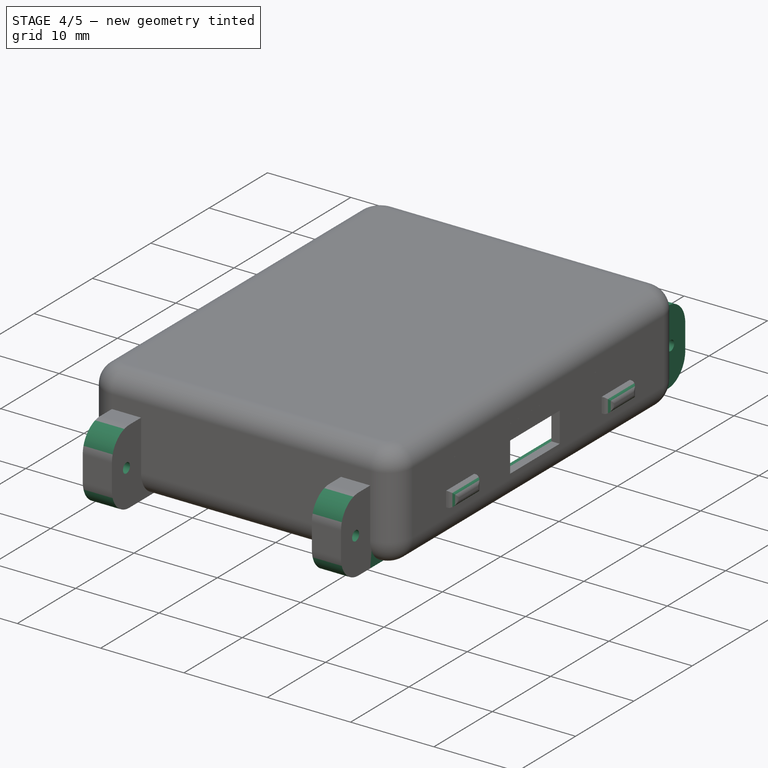
[diagram: stage 4 of 5 — iso view after this stage's code; geometry added in this stage tinted green]
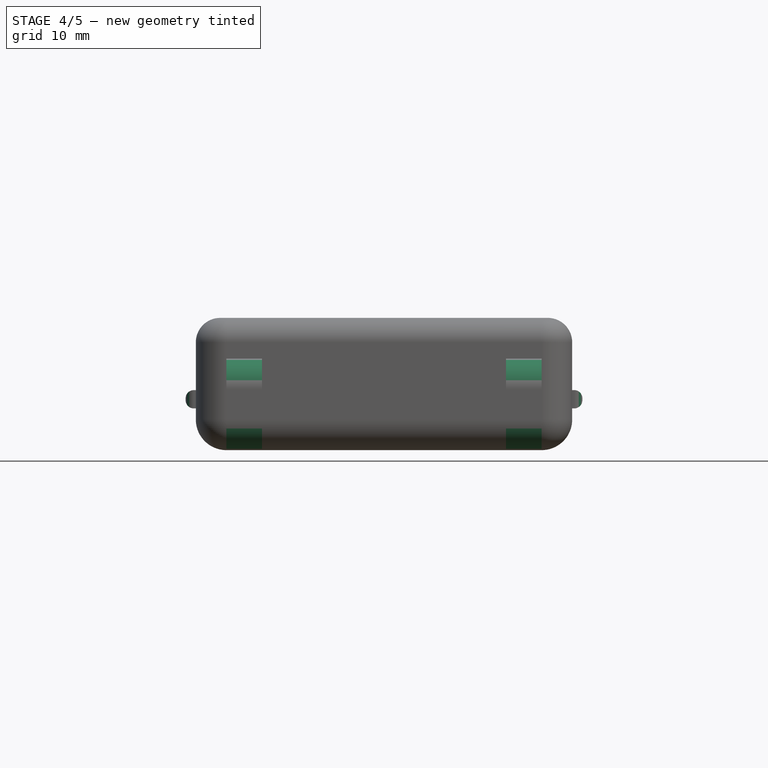
[diagram: stage 4 of 5 — front view after this stage's code; geometry added in this stage tinted green]
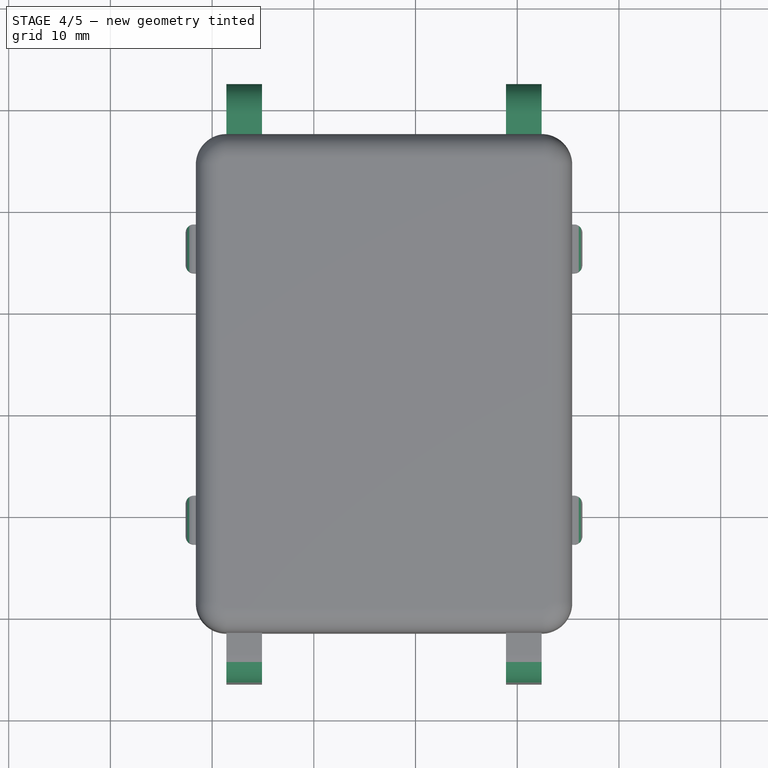
[diagram: stage 4 of 5 — top view after this stage's code; geometry added in this stage tinted green]
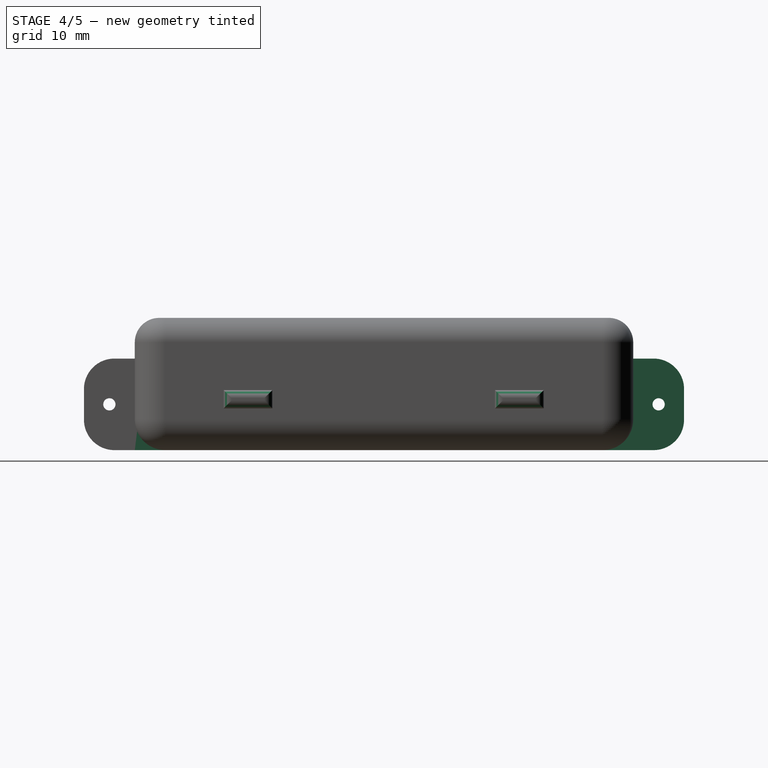
[diagram: stage 4 of 5 — right view after this stage's code; geometry added in this stage tinted green]
FEATURE [PartDesign::Pad] Pad007
  BaseFeature = -> Pad006
  Direction = (0,1,1e-15)
  Length = 3
  Length2 = 10
  Placement = pos=(0,0,-1.5) rot=(1,0,0;3.14159rad)
  Profile = -> Pad006 [Face21]
  Type = 0
FEATURE [PartDesign::Fillet] Fillet005
  Base = -> Pad007 [Edge78,Edge70,Edge166,Edge161]
  BaseFeature = -> Pad007
  Placement = pos=(0,0,-1.5) rot=(1,0,0;3.14159rad)
  Radius = 3
  SupportTransform = false
  UseAllEdges = false
FEATURE [Sketcher::SketchObject] Sketch012
  ExternalGeometry = -> [Fillet005]
  FullyConstrained = true
  MapMode = 5
  Placement = pos=(0,47.5,-1.5) rot=(-1,0,0;1.5708rad)
  Support = -> [Fillet005]
  sketch-geometry (8):
    g0: LineSegment StartX=1.4 StartY=-8 StartZ=0 EndX=4.9 EndY=-8 EndZ=0
    g1: LineSegment StartX=4.9 StartY=-8 StartZ=0 EndX=4.9 EndY=1 EndZ=0
    g2: LineSegment StartX=4.9 StartY=1 StartZ=0 EndX=1.4 EndY=1 EndZ=0
    g3: LineSegment StartX=1.4 StartY=1 StartZ=0 EndX=1.4 EndY=-8 EndZ=0
    g4: LineSegment StartX=32.4 StartY=-8 StartZ=0 EndX=28.9 EndY=-8 EndZ=0
    g5: LineSegment StartX=28.9 StartY=-8 StartZ=0 EndX=28.9 EndY=1 EndZ=0
    g6: LineSegment StartX=28.9 StartY=1 StartZ=0 EndX=32.4 EndY=1 EndZ=0
    g7: LineSegment StartX=32.4 StartY=1 StartZ=0 EndX=32.4 EndY=-8 EndZ=0
  constraints (22):
    c: Coincident(g0,g1)
    c: Coincident(g1,g2)
    c: Coincident(g2,g3)
    c: Coincident(g3,g0)
    c: Horizontal(g0)
    c: Horizontal(g2)
    c: Vertical(g1)
    c: Vertical(g3)
    c: Coincident(g0,g-4)
    c: PointOnObject(g1,g-3)
    c: Coincident(g4,g5)
    c: Coincident(g5,g6)
    c: Coincident(g6,g7)
    c: Coincident(g7,g4)
    c: Horizontal(g4)
    c: Horizontal(g6)
    c: Vertical(g5)
    c: Vertical(g7)
    c: Coincident(g4,g-5)
    c: PointOnObject(g5,g-3)
    c: DistanceX(g2,g2) = 3.5
    c: Equal(g6,g2)
FEATURE [PartDesign::Pad] Pad008
  BaseFeature = -> Fillet005
  Direction = (0,1,1.4e-15)
  Length = 5
  Length2 = 10
  Placement = pos=(0,0,-1.5) rot=(1,0,0;3.14159rad)
  Profile = -> Sketch012
  ReferenceAxis = -> Sketch012 [N_Axis]
  Type = 0
FEATURE [PartDesign::Pad] Pad009
  BaseFeature = -> Pad008
  Direction = (0,-1,-1.7e-15)
  Length = 3
  Length2 = 10
  Placement = pos=(0,0,-1.5) rot=(1,0,0;3.14159rad)
  Profile = -> Pad008 [Face68,Face67]
  Type = 0
FEATURE [PartDesign::Fillet] Fillet006
  Base = -> Pad009 [Edge247,Edge241,Edge143,Edge148]
  BaseFeature = -> Pad009
  Placement = pos=(0,0,-1.5) rot=(1,0,0;3.14159rad)
  Radius = 3
  SupportTransform = false
  UseAllEdges = false
FEATURE [PartDesign::Fillet] Fillet007
  Base = -> Fillet006 [Edge234,Edge235,Edge230,Edge232,Edge247,Edge246,Edge244,Edge242,Edge213,Edge218,Edge217,Edge215,Edge226,Edge221,Edge225,Edge223]
  BaseFeature = -> Fillet006
  Placement = pos=(0,0,-1.5) rot=(1,0,0;3.14159rad)
  Radius = 0.8
  SupportTransform = false
  UseAllEdges = false
FEATURE [Sketcher::SketchObject] Sketch014
  ExternalGeometry = -> [Fillet007]
  FullyConstrained = true
  MapMode = 5
  Placement = pos=(1.4,0,-1.5) rot=(0.57735,0.57735,-0.57735;4.18879rad)
  Support = -> [Fillet007]
  sketch-geometry (2):
    g0: Circle CenterX=-4 CenterY=-3.5 CenterZ=0 NormalX=0 NormalY=0 NormalZ=1 AngleXU=0 Radius=0.6
    g1: Circle CenterX=50 CenterY=-3.5 CenterZ=0 NormalX=0 NormalY=0 NormalZ=1 AngleXU=0 Radius=0.6
  constraints (6):
    c: Diameter(g0) = 1.2
    c: Equal(g1,g0)
    c: DistanceX(g-3,g0) = 2.5
    c: DistanceX(g1,g-4) = 2.5
    c: DistanceY(g0,g-3) = 1.5
    c: DistanceY(g1,g-4) = 1.5
FEATURE [PartDesign::Pocket] Pocket007
  BaseFeature = -> Fillet007
  Direction = (1,0,0)
  Length = 5
  Length2 = 5
  Placement = pos=(0,0,-1.5) rot=(1,0,0;3.14159rad)
  Profile = -> Sketch014
  ReferenceAxis = -> Sketch014 [N_Axis]
  Type = 1
FEATURE [PartDesign::Pad] Pad010
  BaseFeature = -> Pocket007
  Direction = (0,-1.7e-15,1)
  Length = 1
  Length2 = 10
  Placement = pos=(0,0,-1.5) rot=(1,0,0;3.14159rad)
  Profile = -> Pocket007 [Face98]
  Type = 0
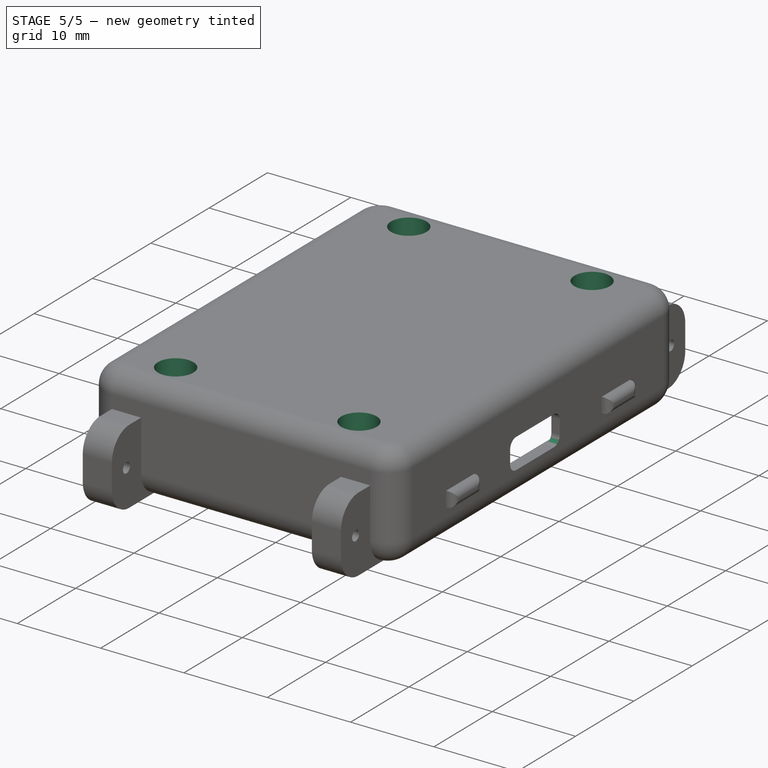
[diagram: stage 5 of 5 — iso view after this stage's code; geometry added in this stage tinted green]
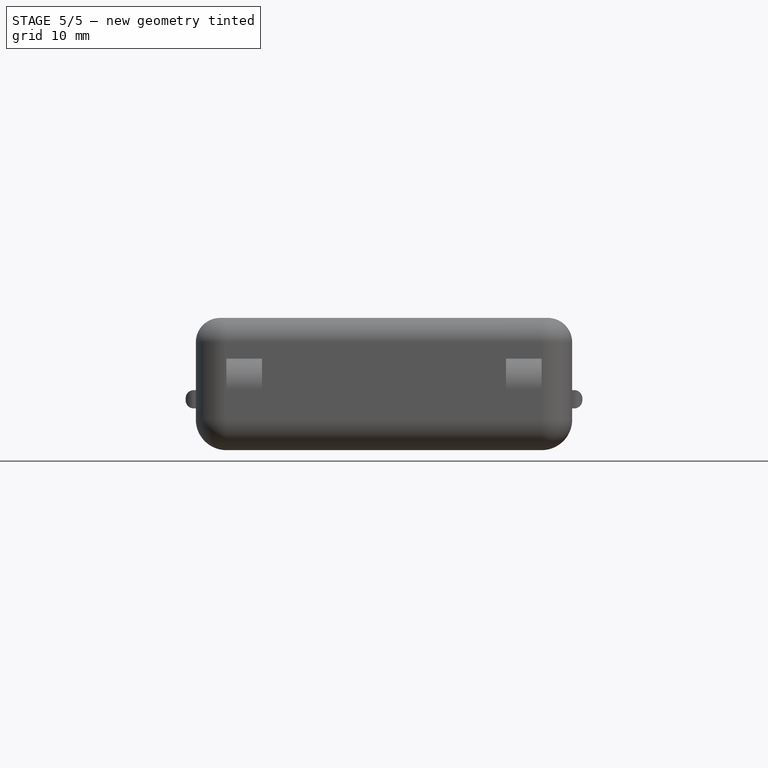
[diagram: stage 5 of 5 — front view after this stage's code; geometry added in this stage tinted green]
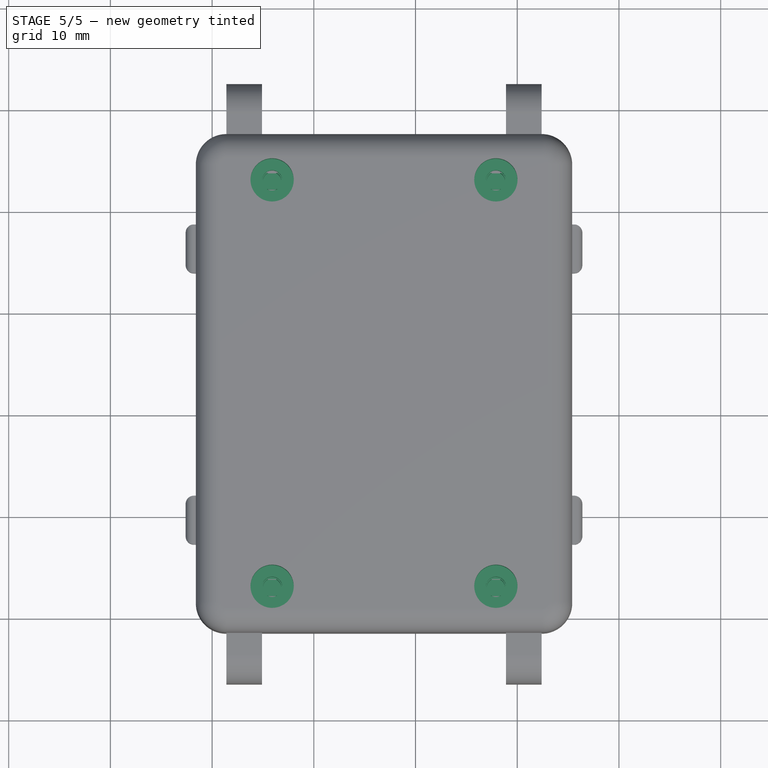
[diagram: stage 5 of 5 — top view after this stage's code; geometry added in this stage tinted green]
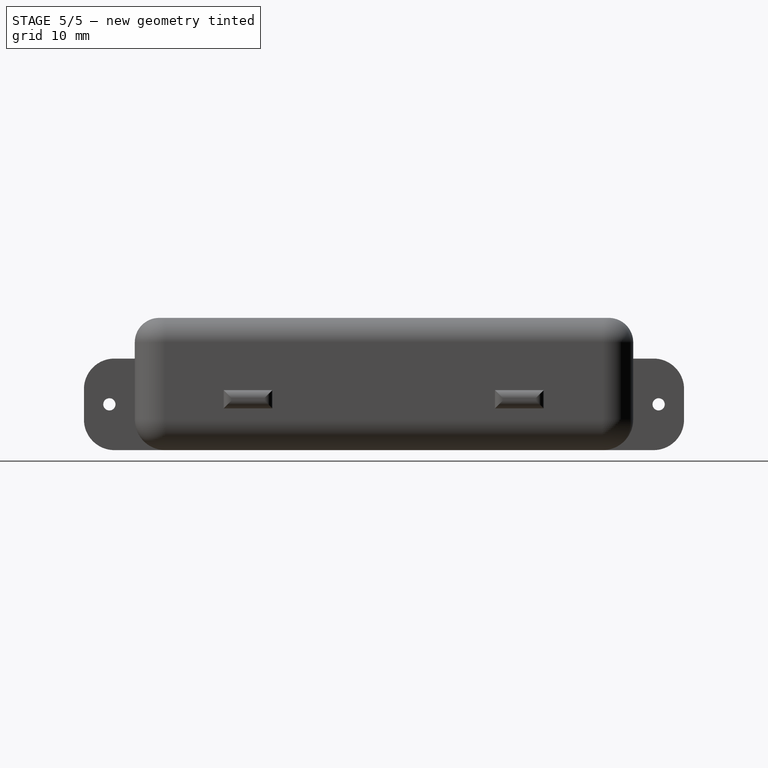
[diagram: stage 5 of 5 — right view after this stage's code; geometry added in this stage tinted green]
FEATURE [Sketcher::SketchObject] Sketch015
  ExternalGeometry = -> [Pad010]
  FullyConstrained = true
  MapMode = 5
  Placement = pos=(0,-3.7e-15,0.5) rot=(0,0,1;0rad)
  Support = -> [Pad010]
  sketch-geometry (4):
    g0: LineSegment StartX=0.48 StartY=9.57 StartZ=0 EndX=33.31 EndY=9.57 EndZ=0
    g1: LineSegment StartX=33.31 StartY=9.57 StartZ=0 EndX=33.31 EndY=3.87 EndZ=0
    g2: LineSegment StartX=33.31 StartY=3.87 StartZ=0 EndX=0.48 EndY=3.87 EndZ=0
    g3: LineSegment StartX=0.48 StartY=3.87 StartZ=0 EndX=0.48 EndY=9.57 EndZ=0
  constraints (10):
    c: Coincident(g0,g1)
    c: Coincident(g1,g2)
    c: Coincident(g2,g3)
    c: Coincident(g3,g0)
    c: Horizontal(g2)
    c: Vertical(g1)
    c: Vertical(g3)
    c: Coincident(g0,g-3)
    c: Coincident(g0,g-3)
    c: DistanceY(g3,g3) = 5.7
FEATURE [PartDesign::Pocket] Pocket008
  BaseFeature = -> Pad010
  Direction = (0,1.8e-15,-1)
  Length = 1
  Length2 = 5
  Placement = pos=(0,0,-1.5) rot=(1,0,0;3.14159rad)
  Profile = -> Sketch015
  ReferenceAxis = -> Sketch015 [N_Axis]
  Type = 0
FEATURE [PartDesign::ShapeBinder] ShapeBinder
  Support = -> [Part__Feature055]
  TraceSupport = false
FEATURE [Sketcher::SketchObject] Sketch016
  ExternalGeometry = -> [ShapeBinder]
  FullyConstrained = true
  MapMode = 5
  Placement = pos=(0,-3.9e-15,0.5) rot=(0,0,1;0rad)
  Support = -> [Pocket008]
  sketch-geometry (8):
    g0: ArcOfCircle CenterX=3.9 CenterY=42.96 CenterZ=0 NormalX=0 NormalY=0 NormalZ=1 AngleXU=0 Radius=0.8 StartAngle=1.5708 EndAngle=4.71239
    g1: ArcOfCircle CenterX=29.9 CenterY=42.96 CenterZ=0 NormalX=0 NormalY=0 NormalZ=1 AngleXU=0 Radius=0.8 StartAngle=4.71239 EndAngle=7.85398
    g2: LineSegment StartX=3.9 StartY=43.76 StartZ=0 EndX=29.9 EndY=43.76 EndZ=0
    g3: LineSegment StartX=29.9 StartY=42.16 StartZ=0 EndX=3.9 EndY=42.16 EndZ=0
    g4: ArcOfCircle CenterX=3.9 CenterY=3 CenterZ=0 NormalX=0 NormalY=0 NormalZ=1 AngleXU=0 Radius=0.8 StartAngle=1.5708 EndAngle=4.71239
    g5: ArcOfCircle CenterX=29.9 CenterY=3 CenterZ=0 NormalX=0 NormalY=0 NormalZ=1 AngleXU=0 Radius=0.8 StartAngle=4.71239 EndAngle=7.85398
    g6: LineSegment StartX=3.9 StartY=3.8 StartZ=0 EndX=29.9 EndY=3.8 EndZ=0
    g7: LineSegment StartX=29.9 StartY=2.2 StartZ=0 EndX=3.9 EndY=2.2 EndZ=0
  constraints (18):
    c: Coincident(g0,g-5)
    c: Diameter(g0) = 1.6
    c: Coincident(g1,g-6)
    c: Equal(g0,g1)
    c: Coincident(g2,g1)
    c: Horizontal(g2)
    c: Coincident(g3,g1)
    c: Horizontal(g3)
    c: Tangent(g3,g0) = 1.5708
    c: Tangent(g2,g0) = 1.5708
    c: Coincident(g4,g-8)
    c: Coincident(g5,g-10)
    c: Equal(g4,g5)
    c: Tangent(g7,g4) = 1.5708
    c: Tangent(g6,g4) = 1.5708
    c: Tangent(g6,g5) = 1.5708
    c: Tangent(g7,g5) = 1.5708
    c: Equal(g4,g0)
FEATURE [PartDesign::Pad] Pad011
  BaseFeature = -> Pocket008
  Direction = (0,-2e-15,1)
  Length = 4
  Length2 = 10
  Placement = pos=(0,0,-1.5) rot=(1,0,0;3.14159rad)
  Profile = -> Sketch016
  ReferenceAxis = -> Sketch016 [N_Axis]
  Type = 0
FEATURE [PartDesign::Fillet] Fillet008
  Base = -> Pad011 [Edge277,Edge279,Edge276,Edge278]
  BaseFeature = -> Pad011
  Placement = pos=(0,0,-1.5) rot=(1,0,0;3.14159rad)
  Radius = 1
  SupportTransform = false
  UseAllEdges = false
FEATURE [PartDesign::ShapeBinder] ShapeBinder001
  Support = -> [Pad011]
  TraceSupport = false
FEATURE [Sketcher::SketchObject] Sketch020
  ExternalGeometry = -> [Fillet008]
  FullyConstrained = true
  MapMode = 5
  Placement = pos=(0,-1.25e-14,4.5) rot=(0,0,1;0rad)
  Support = -> [Fillet008]
  sketch-geometry (6):
    g0: Circle CenterX=5.9 CenterY=42.96 CenterZ=0 NormalX=0 NormalY=0 NormalZ=1 AngleXU=0 Radius=0.9
    g1: Circle CenterX=27.9 CenterY=42.96 CenterZ=0 NormalX=0 NormalY=0 NormalZ=1 AngleXU=0 Radius=0.9
    g2: Circle CenterX=5.9 CenterY=3 CenterZ=0 NormalX=0 NormalY=0 NormalZ=1 AngleXU=0 Radius=0.9
    g3: Circle CenterX=27.9 CenterY=3 CenterZ=0 NormalX=0 NormalY=0 NormalZ=1 AngleXU=0 Radius=0.9
    g4: LineSegment StartX=3.9 StartY=3 StartZ=0 EndX=29.9 EndY=3 EndZ=0
    g5: LineSegment StartX=3.9 StartY=42.96 StartZ=0 EndX=29.9 EndY=42.96 EndZ=0
  constraints (16):
    c: PointOnObject(g1,g5)
    c: PointOnObject(g0,g5)
    c: PointOnObject(g2,g4)
    c: PointOnObject(g3,g4)
    c: DistanceX(g5,g0) = 2
    c: DistanceX(g1,g5) = 2
    c: DistanceX(g4,g2) = 2
    c: DistanceX(g3,g4) = 2
    c: Coincident(g5,g-5)
    c: Coincident(g5,g-6)
    c: Coincident(g4,g-3)
    c: Coincident(g4,g-4)
    c: Diameter(g0) = 1.8
    c: Equal(g0,g1)
    c: Equal(g1,g3)
    c: Equal(g3,g2)
FEATURE [PartDesign::Pocket] Pocket011
  BaseFeature = -> Fillet008
  Direction = (0,2.1e-15,-1)
  Length = 3
  Length2 = 5
  Placement = pos=(0,0,-1.5) rot=(1,0,0;3.14159rad)
  Profile = -> Sketch020
  ReferenceAxis = -> Sketch020 [N_Axis]
  Type = 0
FEATURE [Sketcher::SketchObject] Sketch024
  ExternalGeometry = -> [ShapeBinder001]
  FullyConstrained = true
  MapMode = 5
  Placement = pos=(0,-2e-15,5.5) rot=(1,0,0;3.14159rad)
  Support = -> [Pad015]
  sketch-geometry (6):
    g0: Circle CenterX=5.9 CenterY=-42.96 CenterZ=0 NormalX=0 NormalY=0 NormalZ=1 AngleXU=0 Radius=1
    g1: Circle CenterX=27.9 CenterY=-42.96 CenterZ=0 NormalX=0 NormalY=0 NormalZ=1 AngleXU=0 Radius=1
    g2: Circle CenterX=5.9 CenterY=-3 CenterZ=0 NormalX=0 NormalY=0 NormalZ=1 AngleXU=0 Radius=1
    g3: Circle CenterX=27.9 CenterY=-3 CenterZ=0 NormalX=0 NormalY=0 NormalZ=1 AngleXU=0 Radius=1
    g4: LineSegment StartX=3.9 StartY=-42.96 StartZ=0 EndX=29.9 EndY=-42.96 EndZ=0
    g5: LineSegment StartX=3.9 StartY=-3 StartZ=0 EndX=29.9 EndY=-3 EndZ=0
  constraints (16):
    c: DistanceX(g-5,g2) = 2
    c: DistanceX(g3,g-6) = 2
    c: DistanceX(g1,g-4) = 2
    c: DistanceX(g-3,g0) = 2
    c: Coincident(g4,g-3)
    c: Coincident(g4,g-4)
    c: Coincident(g5,g-5)
    c: Coincident(g5,g-6)
    c: PointOnObject(g3,g5)
    c: PointOnObject(g2,g5)
    c: PointOnObject(g0,g4)
    c: PointOnObject(g1,g4)
    c: Diameter(g0) = 2
    c: Equal(g1,g0)
    c: Equal(g0,g2)
    c: Equal(g2,g3)
FEATURE [PartDesign::Pocket] Pocket012
  BaseFeature = -> Pad015
  Direction = (0,-5.9e-15,1)
  Length = 5
  Length2 = 5
  Placement = pos=(0,-7.8e-15,6.5) rot=(0,0,1;0rad)
  Profile = -> Sketch024
  ReferenceAxis = -> Sketch024 [N_Axis]
  Type = 1
FEATURE [Sketcher::SketchObject] Sketch025
  ExternalGeometry = -> [Pocket012]
  FullyConstrained = true
  MapMode = 5
  Placement = pos=(0,-3.53e-14,10.5) rot=(0,0,1;0rad)
  Support = -> [Pocket012]
  sketch-geometry (4):
    g0: Circle CenterX=5.9 CenterY=42.96 CenterZ=0 NormalX=0 NormalY=0 NormalZ=1 AngleXU=0 Radius=2.125
    g1: Circle CenterX=27.9 CenterY=42.96 CenterZ=0 NormalX=0 NormalY=0 NormalZ=1 AngleXU=0 Radius=2.125
    g2: Circle CenterX=5.9 CenterY=3 CenterZ=0 NormalX=0 NormalY=0 NormalZ=1 AngleXU=0 Radius=2.125
    g3: Circle CenterX=27.9 CenterY=3 CenterZ=0 NormalX=0 NormalY=0 NormalZ=1 AngleXU=0 Radius=2.125
  constraints (8):
    c: Coincident(g0,g-3)
    c: Coincident(g1,g-4)
    c: Coincident(g2,g-5)
    c: Coincident(g3,g-6)
    c: Diameter(g0) = 4.25
    c: Equal(g0,g1)
    c: Equal(g1,g3)
    c: Equal(g3,g2)
FEATURE [PartDesign::Pocket] Pocket013
  BaseFeature = -> Pocket012
  Direction = (0,6.9e-15,-1)
  Length = 3
  Length2 = 5
  Placement = pos=(0,-7.8e-15,6.5) rot=(0,0,1;0rad)
  Profile = -> Sketch025
  ReferenceAxis = -> Sketch025 [N_Axis]
  Type = 0
FEATURE [PartDesign::Fillet] Fillet009
  Base = -> Pocket013 [Edge136,Edge132,Edge131,Edge134,Edge139,Edge142,Edge140,Edge144]
  BaseFeature = -> Pocket013
  Placement = pos=(0,-7.8e-15,6.5) rot=(0,0,1;0rad)
  Radius = 1
  SupportTransform = false
  UseAllEdges = false
FEATURE [PartDesign::Body] Body002  label="Case_Bottom"
  Group = -> [DatumPlane001,ReferenceFillet003,Sketch009,Pad004,Fillet004,Sketch010,Pocket006,ShapeBinder001,Sketch021,Pad013,Sketch022,Pad014,Sketch023,Pad015,Sketch024,Pocket012,Sketch025,Pocket013,Fillet009]
  Origin = -> Origin115
  Tip = -> Fillet009
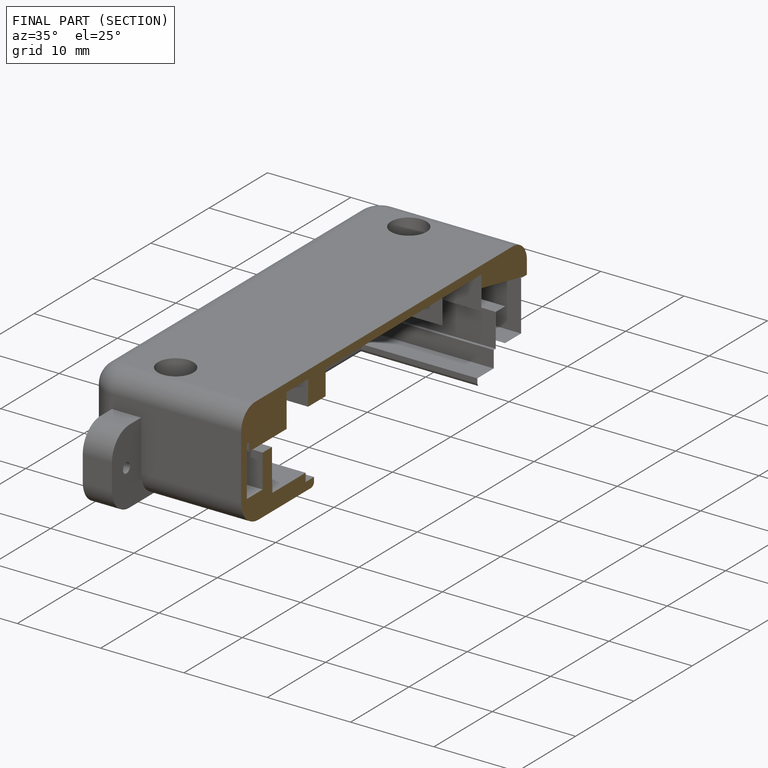
[diagram: finished part — half-section view (interior)]
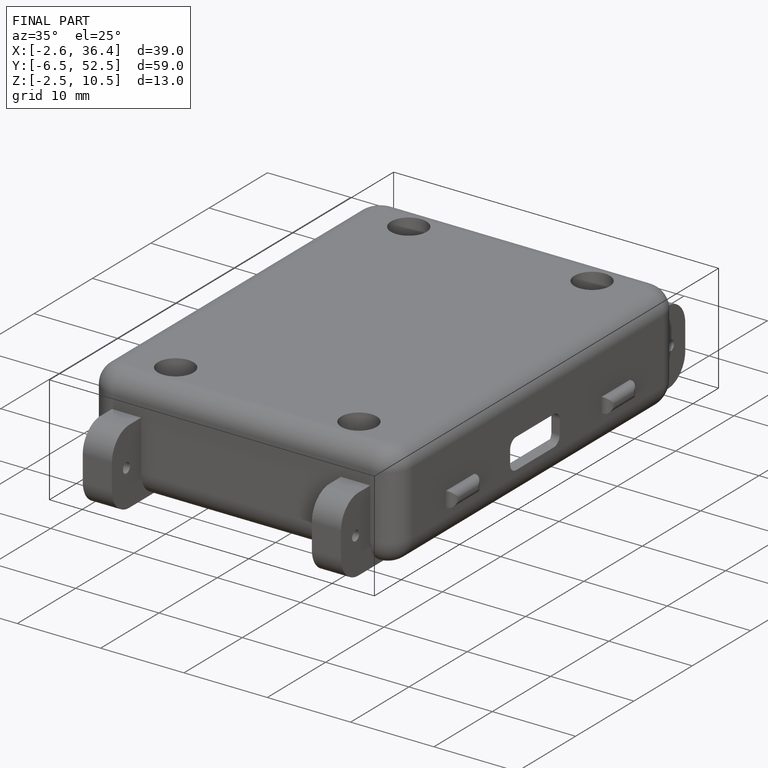
[diagram: finished part — iso view with bounding-box wireframe]
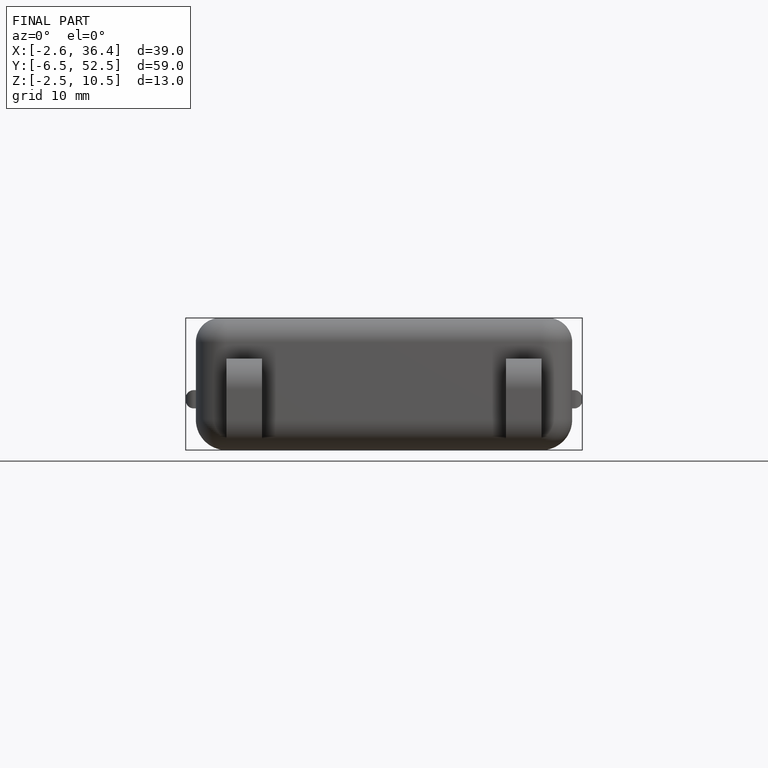
[diagram: finished part — front view with bounding-box wireframe]
